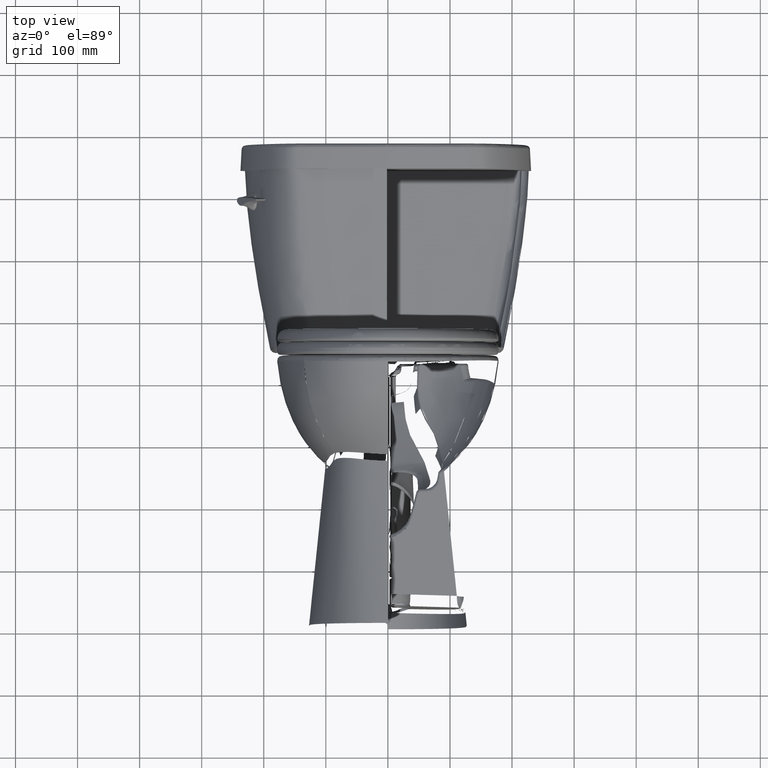
[diagram: clean part render]
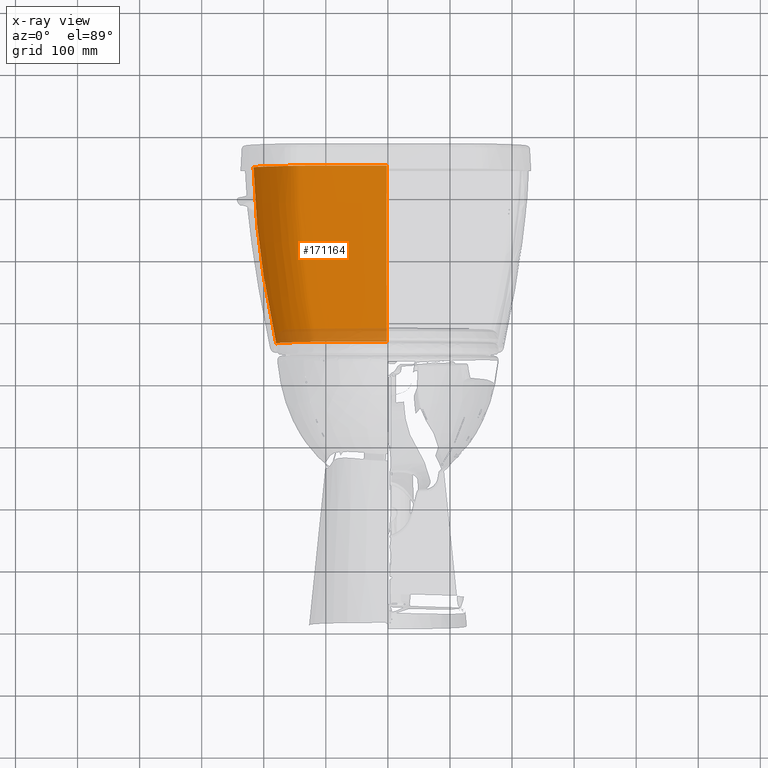
[diagram: x-ray — body ghosted, one internal face saturated and labeled with its STEP entity id]
A machine part, top view, then the same camera in x-ray: the body is ghosted and one INTERNAL B-rep face — a face not visible from any outside direction — is saturated and labeled: STEP entity #171164.
In plain terms, the highlighted face is a freeform B-spline surface patch.
Its self-contained STEP definition (entity closure, byte-faithful):
#259 = VERTEX_POINT ( 'NONE', #44811 ) ;
#425 = CARTESIAN_POINT ( 'NONE',  ( -8.419079660446380200, 14.65371468429526100, 27.30443325773526900 ) ) ;
#824 = CARTESIAN_POINT ( 'NONE',  ( -3.106235323199040700, 9.211382932808387400, 18.40540422632592800 ) ) ;
#1183 = CARTESIAN_POINT ( 'NONE',  ( -8.399860134540427100, 14.64931599205534400, 27.04958237840545000 ) ) ;
#1304 = EDGE_CURVE ( 'NONE', #114792, #196586, #52062, .T. ) ;
#1471 = CARTESIAN_POINT ( 'NONE',  ( -2.837864535323701500, 9.191541358276579000, 18.40555731201929000 ) ) ;
#2054 = CARTESIAN_POINT ( 'NONE',  ( -0.06915585233496257500, 8.753687960185088100, 27.54644208565342500 ) ) ;
#2499 = CARTESIAN_POINT ( 'NONE',  ( -0.06977486976558999700, 8.821630473137648900, 25.34970909367833900 ) ) ;
#2554 = CARTESIAN_POINT ( 'NONE',  ( -5.820563128046619500, 9.067157067053484500, 29.55404106676773100 ) ) ;
#2780 = CARTESIAN_POINT ( 'NONE',  ( -5.634218406218884000, 8.986581406398876500, 29.55532335167465200 ) ) ;
#3187 = EDGE_CURVE ( 'NONE', #102790, #125824, #28790, .T. ) ;
#3459 = CARTESIAN_POINT ( 'NONE',  ( -6.432233224795393100, 9.656388015346454500, 29.55086172115471000 ) ) ;
#3682 = ORIENTED_EDGE ( 'NONE', *, *, #148144, .T. ) ;
#4088 = VERTEX_POINT ( 'NONE', #69550 ) ;
#4457 = CARTESIAN_POINT ( 'NONE',  ( -7.998462636884526400, 12.65377571765934500, 29.55336295386297300 ) ) ;
#4483 = VERTEX_POINT ( 'NONE', #188095 ) ;
#4622 = EDGE_CURVE ( 'NONE', #90400, #87130, #191768, .T. ) ;
#4795 = CARTESIAN_POINT ( 'NONE',  ( -5.820563128046619500, 9.067157067053484500, 29.55404106676773100 ) ) ;
#5319 = CARTESIAN_POINT ( 'NONE',  ( -8.180798328318918100, 13.18988230609222800, 29.55338310121963400 ) ) ;
#5350 = CARTESIAN_POINT ( 'NONE',  ( -6.116511225121976200, 11.09519727046406100, 18.38093476572914000 ) ) ;
#5468 = ORIENTED_EDGE ( 'NONE', *, *, #6243, .T. ) ;
#6243 = EDGE_CURVE ( 'NONE', #259, #118914, #171508, .T. ) ;
#6247 = CARTESIAN_POINT ( 'NONE',  ( -1.262864671300399500, 8.709684228032118700, 29.55461837463346700 ) ) ;
#7232 = CARTESIAN_POINT ( 'NONE',  ( -6.281152038012914200, 9.472238898213625200, 29.55170385305989100 ) ) ;
#7603 = CARTESIAN_POINT ( 'NONE',  ( -4.607085457785832900, 9.401928662433551400, 18.39733695921133000 ) ) ;
#8011 = ORIENTED_EDGE ( 'NONE', *, *, #107538, .T. ) ;
#8353 = CARTESIAN_POINT ( 'NONE',  ( -8.473041967578741000, 14.40596792236968500, 28.82550555555866400 ) ) ;
#8400 = VERTEX_POINT ( 'NONE', #69933 ) ;
#8630 = ORIENTED_EDGE ( 'NONE', *, *, #16452, .T. ) ;
#8752 = CARTESIAN_POINT ( 'NONE',  ( -4.140285619023616800, 8.814950337761841200, 29.55670074416850600 ) ) ;
#8792 = B_SPLINE_CURVE_WITH_KNOTS ( 'NONE', 3,
 ( #41215, #40419, #61014, #204825 ),
 .UNSPECIFIED., .F., .F.,
 ( 4, 4 ),
 ( 0.0000000000000000000, 1.000000000000000000 ),
 .UNSPECIFIED. ) ;
#9022 = CARTESIAN_POINT ( 'NONE',  ( -7.635775005555621500, 14.58925933326115000, 21.15202729663917900 ) ) ;
#9144 = CARTESIAN_POINT ( 'NONE',  ( -5.987422853578740600, 9.192747268369686300, 28.82475790855866300 ) ) ;
#9166 = B_SPLINE_CURVE_WITH_KNOTS ( 'NONE', 3,
 ( #22821, #5350, #186383, #60866 ),
 .UNSPECIFIED., .F., .F.,
 ( 4, 4 ),
 ( 0.0000000000000000000, 1.000000000000000000 ),
 .UNSPECIFIED. ) ;
#9226 = EDGE_CURVE ( 'NONE', #4088, #193020, #67958, .T. ) ;
#9788 = CARTESIAN_POINT ( 'NONE',  ( -8.067066248318367300, 14.60411779700153400, 23.94471251384044700 ) ) ;
#9868 = CARTESIAN_POINT ( 'NONE',  ( -4.550617941806086400, 9.386305528800788200, 18.39885912971952900 ) ) ;
#9915 = CARTESIAN_POINT ( 'NONE',  ( -3.272275438581496100, 8.759730096369684900, 29.63904470355866000 ) ) ;
#10006 = CARTESIAN_POINT ( 'NONE',  ( -5.286015257712112900, 9.966031772616315000, 18.38191341893867700 ) ) ;
#10394 = CARTESIAN_POINT ( 'NONE',  ( -4.594224303578740500, 9.411123767369684100, 18.25351353655866400 ) ) ;
#10404 = CARTESIAN_POINT ( 'NONE',  ( -6.315141084413917300, 11.44530329104775600, 18.38126966788100000 ) ) ;
#10446 = VERTEX_POINT ( 'NONE', #168115 ) ;
#10600 = CARTESIAN_POINT ( 'NONE',  ( -8.211915191830531300, 14.61810084866361100, 25.11221175157728100 ) ) ;
#10710 = ORIENTED_EDGE ( 'NONE', *, *, #117412, .T. ) ;
#10733 = CARTESIAN_POINT ( 'NONE',  ( -6.214146798578740400, 9.399507022369686400, 28.82263768855866100 ) ) ;
#11184 = CARTESIAN_POINT ( 'NONE',  ( -6.277895207578740900, 11.39820839936968800, 18.29411050555866300 ) ) ;
#11352 = VERTEX_POINT ( 'NONE', #126273 ) ;
#11376 = CARTESIAN_POINT ( 'NONE',  ( -8.305978308442229600, 14.63153064617656300, 25.99431165160909200 ) ) ;
#11385 = B_SPLINE_CURVE_WITH_KNOTS ( 'NONE', 3,
 ( #2554, #110441, #182779, #165249, #75471, #147800, #166042, #57281 ),
 .UNSPECIFIED., .F., .F.,
 ( 4, 2, 2, 4 ),
 ( 0.0000000000000000000, 0.4999999999999998900, 0.7499999999999998900, 1.000000000000000000 ),
 .UNSPECIFIED. ) ;
#11500 = CARTESIAN_POINT ( 'NONE',  ( -0.5411044955814960900, 8.695272341369685500, 29.63269373055866000 ) ) ;
#11949 = CARTESIAN_POINT ( 'NONE',  ( -5.292142068578741000, 9.995518776369685600, 18.29322109455866000 ) ) ;
#11950 = ORIENTED_EDGE ( 'NONE', *, *, #31328, .T. ) ;
#11952 = B_SPLINE_CURVE_WITH_KNOTS ( 'NONE', 3,
 ( #106503, #233664, #30479, #54106, #16075, #89783 ),
 .UNSPECIFIED., .F., .F.,
 ( 4, 2, 4 ),
 ( 0.0000000000000000000, 0.5000000000000000000, 1.000000000000000000 ),
 .UNSPECIFIED. ) ;
#12148 = CARTESIAN_POINT ( 'NONE',  ( -8.120155697079482600, 14.60845819277601600, 24.35298827417355500 ) ) ;
#12284 = CARTESIAN_POINT ( 'NONE',  ( -5.086141625578740400, 9.121677021369686500, 24.38700027555865900 ) ) ;
#12728 = CARTESIAN_POINT ( 'NONE',  ( -5.127885604578740900, 9.813498909369684500, 18.29075047455866400 ) ) ;
#12771 = CARTESIAN_POINT ( 'NONE',  ( -3.353185906577966300, 9.231316932835634100, 18.40497884309920100 ) ) ;
#13049 = CARTESIAN_POINT ( 'NONE',  ( -5.416075561578741000, 9.453985696369684900, 21.41662730555865900 ) ) ;
#13053 = CARTESIAN_POINT ( 'NONE',  ( -0.3795933769099224500, 9.080660841698438900, 18.40507412228510700 ) ) ;
#13387 = CARTESIAN_POINT ( 'NONE',  ( -3.243798873011603400, 8.763799923874559600, 29.55641039710717900 ) ) ;
#13831 = CARTESIAN_POINT ( 'NONE',  ( -1.285782216581496300, 8.860388022369685100, 24.38016053555866200 ) ) ;
#14263 = CARTESIAN_POINT ( 'NONE',  ( -3.445900153492481400, 9.239076577702769900, 18.40477344907325400 ) ) ;
#14408 = CARTESIAN_POINT ( 'NONE',  ( -4.066621739641949100, 9.305921201351202000, 18.40272918239464400 ) ) ;
#14589 = CARTESIAN_POINT ( 'NONE',  ( -5.682907937578740100, 9.302785028369685300, 24.40237309755866200 ) ) ;
#14893 = VERTEX_POINT ( 'NONE', #214708 ) ;
#15366 = CARTESIAN_POINT ( 'NONE',  ( -7.765490027578740000, 12.61569406336968400, 24.40371613555866000 ) ) ;
#16075 = CARTESIAN_POINT ( 'NONE',  ( -7.278680333683935200, 10.99519423398150800, 29.55121794605412700 ) ) ;
#16148 = CARTESIAN_POINT ( 'NONE',  ( -5.127462741578739300, 9.298936486369685300, 21.39907438855866000 ) ) ;
#16248 = ORIENTED_EDGE ( 'NONE', *, *, #187950, .T. ) ;
#16348 = EDGE_CURVE ( 'NONE', #210842, #63400, #11385, .T. ) ;
#16452 = EDGE_CURVE ( 'NONE', #163771, #114867, #95707, .T. ) ;
#16930 = CARTESIAN_POINT ( 'NONE',  ( -4.907693983578740300, 9.423742340369685200, 19.26205435055866400 ) ) ;
#17692 = CARTESIAN_POINT ( 'NONE',  ( -5.331728531969000400, 8.925163980629164900, 29.55602004915839500 ) ) ;
#17705 = CARTESIAN_POINT ( 'NONE',  ( -4.781477327578740800, 9.375351516369685000, 19.24935866055866300 ) ) ;
#18398 = CARTESIAN_POINT ( 'NONE',  ( -0.06687898313162316000, 9.079168769970769000, 18.40514471876067000 ) ) ;
#18579 = B_SPLINE_CURVE_WITH_KNOTS ( 'NONE', 3,
 ( #155603, #181640, #125208, #180060 ),
 .UNSPECIFIED., .F., .F.,
 ( 4, 4 ),
 ( 0.0000000000000000000, 1.000000000000000000 ),
 .UNSPECIFIED. ) ;
#18682 = CARTESIAN_POINT ( 'NONE',  ( -8.418477241074608500, 14.65357249429260400, 27.29619333755666600 ) ) ;
#19286 = CARTESIAN_POINT ( 'NONE',  ( -4.667566845165105800, 8.855730611929926600, 29.55633320850923300 ) ) ;
#19414 = B_SPLINE_SURFACE_WITH_KNOTS ( 'NONE', 3, 3, ( 
 ( #94750, #163893, #221139, #21817, #113018, #131287, #149586, #182209, #200486, #182986, #91559, #218761, #225944, #40854, #229093, #82884, #82098, #83670, #118633, #210924, #167857, #156011, #209351, #101927, #228318, #207760, #9915, #59088, #210146, #11500, #98807 ),
 ( #47263, #8353, #191792, #117843, #174255, #45693, #136918, #65458, #138496, #135354, #189422, #192583, #10733, #101145, #9144, #26610, #226747, #28193, #171895, #119443, #136135, #117062, #153622, #44907, #120222, #172695, #63088, #190207, #80507, #81290, #137690 ),
 ( #99591, #29006, #208568, #155204, #27388, #154402, #63861, #191001, #100381, #46484, #29783, #227534, #173473, #64674, #178116, #31316, #102707, #69297, #231419, #84433, #51062, #158321, #177338, #86753, #30552, #67785, #48811, #175804, #50314, #68552, #195657 ),
 ( #49556, #142373, #123272, #193357, #15366, #122506, #176585, #194891, #232956, #213978, #32093, #141598, #212470, #105014, #14589, #156775, #85977, #213229, #139270, #124050, #12284, #32847, #196423, #87539, #211706, #48032, #229886, #214725, #13831, #175034, #105796 ),
 ( #104259, #157547, #194132, #140815, #120988, #66237, #67007, #232190, #159858, #85197, #103501, #230655, #121752, #13049, #159090, #140066, #89862, #16148, #198770, #71632, #35918, #197985, #160636, #143919, #89076, #216267, #197192, #161418, #34374, #143140, #179693 ),
 ( #162192, #52598, #217046, #70829, #234502, #108140, #162949, #88302, #51829, #235297, #126378, #53401, #107358, #215492, #125613, #16930, #233746, #17705, #35152, #70074, #106571, #124827, #144706, #180471, #33612, #178903, #209825, #83343, #139727, #194568, #68225 ),
 ( #28664, #157226, #137379, #46952, #210598, #29471, #11184, #84888, #121433, #156450, #11949, #12728, #103935, #193034, #155681, #231106, #48477, #10394, #212917, #84120, #103163, #31003, #192257, #229564, #101604, #228774, #212150, #230339, #157986, #49237, #65913 ) ),
 .UNSPECIFIED., .F., .F., .F.,
 ( 4, 1, 1, 1, 4 ),
 ( 4, 1, 1, 1, 1, 1, 1, 1, 1, 1, 1, 1, 1, 1, 1, 1, 1, 1, 1, 1, 1, 1, 1, 1, 1, 1, 1, 1, 4 ),
 ( 0.005703784276809000100, 0.2080965682239999900, 0.4161931364479999900, 0.7080965682240000200, 0.9625052689209999700 ),
 ( 0.5987822347839999400, 0.6228102780230000400, 0.6340141175110000100, 0.6452179569989999800, 0.6691447466169999600, 0.6811081414259999600, 0.6930715362339999700, 0.7050349310429999700, 0.7169983258519999600, 0.7229800232559999700, 0.7289617206609999600, 0.7349434180649999600, 0.7409251154689999700, 0.7429485084829999800, 0.7449719014960000100, 0.7490186875219999600, 0.7510420805349999900, 0.7530654735480000200, 0.7571122595749999500, 0.7611590456010000100, 0.7652058316269999500, 0.7692526176530000100, 0.7732994036800000500, 0.7813929757319999500, 0.7894865477850000500, 0.8056736918900000400, 0.8218608359950000400, 0.8380479801000000300, 0.8720784722519999700 ),
 .UNSPECIFIED. ) ;
#19459 = CARTESIAN_POINT ( 'NONE',  ( -5.767105375250555900, 10.56825423417031700, 18.38054243735387800 ) ) ;
#19580 = CARTESIAN_POINT ( 'NONE',  ( -7.864375826263556100, 12.30187437218796200, 29.55320777307820300 ) ) ;
#19826 = CARTESIAN_POINT ( 'NONE',  ( -6.736282811303054200, 12.40060890315948000, 18.38036480356576900 ) ) ;
#20617 = CARTESIAN_POINT ( 'NONE',  ( -6.818443129510067800, 12.65332892248005200, 18.37971462215191900 ) ) ;
#21056 = CARTESIAN_POINT ( 'NONE',  ( -7.780676338537959100, 12.09466231499632700, 29.55305117160013100 ) ) ;
#21542 = CARTESIAN_POINT ( 'NONE',  ( -0.06951906611264802000, 8.852213104962467900, 24.41867190946838000 ) ) ;
#21649 = CARTESIAN_POINT ( 'NONE',  ( -3.779953884164973100, 9.271666381298688400, 18.40370294031455600 ) ) ;
#21658 = EDGE_CURVE ( 'NONE', #149733, #90400, #72555, .T. ) ;
#21734 = CARTESIAN_POINT ( 'NONE',  ( -6.525335517607858000, 9.777081928629050000, 29.55051992373913100 ) ) ;
#21817 = CARTESIAN_POINT ( 'NONE',  ( -8.207498262578740300, 13.26261637436968500, 29.62869207855866400 ) ) ;
#22332 = ORIENTED_EDGE ( 'NONE', *, *, #117830, .T. ) ;
#22821 = CARTESIAN_POINT ( 'NONE',  ( -6.162551189641958700, 11.17342247855143900, 18.38101586942160300 ) ) ;
#22930 = CARTESIAN_POINT ( 'NONE',  ( -0.8792912489886327600, 8.703596083401649300, 29.55458655945786000 ) ) ;
#23167 = VERTEX_POINT ( 'NONE', #210900 ) ;
#23739 = CARTESIAN_POINT ( 'NONE',  ( -5.820563128046619500, 9.067157067053484500, 29.55404106676773100 ) ) ;
#24292 = CARTESIAN_POINT ( 'NONE',  ( -7.086305349610128700, 14.43080584027599000, 18.37551948695604400 ) ) ;
#24632 = CARTESIAN_POINT ( 'NONE',  ( -0.06687898313162316000, 9.079168769970769000, 18.40514471876067000 ) ) ;
#25068 = CARTESIAN_POINT ( 'NONE',  ( -4.661330385259646800, 9.420340280250533400, 18.39550941275556500 ) ) ;
#25119 = CARTESIAN_POINT ( 'NONE',  ( -7.380427534927727100, 11.19804300493726700, 29.55164862395460200 ) ) ;
#25234 = CARTESIAN_POINT ( 'NONE',  ( -3.654933279028351300, 9.258697916384601700, 18.40413521973621900 ) ) ;
#25276 = CARTESIAN_POINT ( 'NONE',  ( -0.6985461206657501700, 8.701673856666468900, 29.55456928334762500 ) ) ;
#25355 = CARTESIAN_POINT ( 'NONE',  ( -7.012667880179735700, 13.51943146230926200, 18.37744735951051900 ) ) ;
#25403 = CARTESIAN_POINT ( 'NONE',  ( -5.741802787177817000, 9.027475447594167000, 29.55459265388001100 ) ) ;
#25542 = VERTEX_POINT ( 'NONE', #84657 ) ;
#26183 = CARTESIAN_POINT ( 'NONE',  ( -6.020737062665270800, 9.206573364238840500, 29.55309788369235200 ) ) ;
#26211 = CARTESIAN_POINT ( 'NONE',  ( -0.06810770303828164700, 9.004060558418913700, 20.24598680381695500 ) ) ;
#26277 = VERTEX_POINT ( 'NONE', #199029 ) ;
#26610 = CARTESIAN_POINT ( 'NONE',  ( -5.912716264578740800, 9.137506011369685800, 28.82512487855866100 ) ) ;
#26823 = EDGE_CURVE ( 'NONE', #234866, #60059, #39320, .T. ) ;
#26993 = ORIENTED_EDGE ( 'NONE', *, *, #91395, .T. ) ;
#27034 = CARTESIAN_POINT ( 'NONE',  ( -4.678220259713860700, 9.426705583510161200, 18.39487241457425900 ) ) ;
#27068 = CARTESIAN_POINT ( 'NONE',  ( -3.654933279028351300, 9.258697916384601700, 18.40413521973621900 ) ) ;
#27081 = CARTESIAN_POINT ( 'NONE',  ( -2.206120058312207400, 9.150771929313382500, 18.40521981856850800 ) ) ;
#27388 = CARTESIAN_POINT ( 'NONE',  ( -7.936700316578741100, 12.61928679336968500, 27.18642852755865700 ) ) ;
#27966 = CARTESIAN_POINT ( 'NONE',  ( -4.764160523451492300, 9.468199423335720500, 18.39101387353044700 ) ) ;
#28074 = CARTESIAN_POINT ( 'NONE',  ( -7.085579152553150600, 14.59351282908907000, 18.37513363553937800 ) ) ;
#28193 = CARTESIAN_POINT ( 'NONE',  ( -5.757223539578740600, 9.053618788369686100, 28.82666079155866600 ) ) ;
#28230 = CARTESIAN_POINT ( 'NONE',  ( -7.565230813214938600, 11.59473743594560500, 29.55240527247246600 ) ) ;
#28297 = CARTESIAN_POINT ( 'NONE',  ( -5.201384969779550900, 9.871221054428202600, 18.38247048164957300 ) ) ;
#28340 = CARTESIAN_POINT ( 'NONE',  ( -5.925572568622290400, 10.79260895705007100, 18.38060767926163300 ) ) ;
#28552 = CARTESIAN_POINT ( 'NONE',  ( -3.654933279028351300, 9.258697916384601700, 18.40413521973621900 ) ) ;
#28664 = CARTESIAN_POINT ( 'NONE',  ( -7.069921895578740000, 14.66097509936968600, 18.30930926255866400 ) ) ;
#28790 = B_SPLINE_CURVE_WITH_KNOTS ( 'NONE', 3,
 ( #221263, #19580, #94872, #4457, #112343, #183103 ),
 .UNSPECIFIED., .F., .F.,
 ( 4, 2, 4 ),
 ( 0.0000000000000000000, 0.5000000000000000000, 1.000000000000000000 ),
 .UNSPECIFIED. ) ;
#28846 = CARTESIAN_POINT ( 'NONE',  ( -0.06885526009456334500, 8.928945628466754800, 22.21966332953154600 ) ) ;
#28870 = CARTESIAN_POINT ( 'NONE',  ( -8.067436993603655200, 14.60414588009607200, 23.94750578405765000 ) ) ;
#29006 = CARTESIAN_POINT ( 'NONE',  ( -8.396980598578739600, 14.38017065536968400, 27.19869176355866000 ) ) ;
#29471 = CARTESIAN_POINT ( 'NONE',  ( -6.575468650578741000, 11.99082806936968600, 18.29362959655866300 ) ) ;
#29479 = CARTESIAN_POINT ( 'NONE',  ( -6.278238150032835000, 11.37623279279863000, 18.38122546830074800 ) ) ;
#29648 = CARTESIAN_POINT ( 'NONE',  ( -1.044151900040486200, 9.098049844229134200, 18.40476465880379900 ) ) ;
#29658 = CARTESIAN_POINT ( 'NONE',  ( -8.391850291897107200, 14.64757322736378800, 26.94856130231164200 ) ) ;
#29783 = CARTESIAN_POINT ( 'NONE',  ( -6.502420761578741300, 9.805032900369685200, 27.19118125755866100 ) ) ;
#30414 = CARTESIAN_POINT ( 'NONE',  ( -7.580732472938875000, 14.58883198519878900, 20.83982022221812600 ) ) ;
#30479 = CARTESIAN_POINT ( 'NONE',  ( -7.159851321351961700, 10.77090534096959500, 29.55075816948091500 ) ) ;
#30552 = CARTESIAN_POINT ( 'NONE',  ( -4.403388852578740600, 8.932262410369686400, 27.18589942255866300 ) ) ;
#30600 = CARTESIAN_POINT ( 'NONE',  ( -4.723202989058941100, 9.446489297934100200, 18.39292338191500400 ) ) ;
#30773 = CARTESIAN_POINT ( 'NONE',  ( -6.931512929196848900, 13.08473328224330800, 18.37851037985433300 ) ) ;
#31003 = CARTESIAN_POINT ( 'NONE',  ( -4.101390493578740000, 9.319663004369685300, 18.23850942655866400 ) ) ;
#31316 = CARTESIAN_POINT ( 'NONE',  ( -5.854587765578741300, 9.177992086369686200, 27.19397888655866400 ) ) ;
#31328 = EDGE_CURVE ( 'NONE', #52359, #225612, #85743, .T. ) ;
#31935 = CARTESIAN_POINT ( 'NONE',  ( -0.06933588969177494100, 8.868155873617737900, 23.95379941567481200 ) ) ;
#32093 = CARTESIAN_POINT ( 'NONE',  ( -6.283976215578739800, 9.848948840369685000, 24.40556244755866200 ) ) ;
#32847 = CARTESIAN_POINT ( 'NONE',  ( -4.907854248578740200, 9.100292257369684300, 24.38597390755866500 ) ) ;
#33104 = ORIENTED_EDGE ( 'NONE', *, *, #65799, .T. ) ;
#33612 = CARTESIAN_POINT ( 'NONE',  ( -3.628599609581496300, 9.217553814369685100, 19.23149587755866100 ) ) ;
#33808 = CARTESIAN_POINT ( 'NONE',  ( -7.609468279842557700, 11.69327462052343100, 29.55256969455455300 ) ) ;
#34374 = CARTESIAN_POINT ( 'NONE',  ( -1.202872584581496000, 8.969847452369686300, 21.38524198555866100 ) ) ;
#34440 = CARTESIAN_POINT ( 'NONE',  ( -4.778142366243967500, 9.476695604778555500, 18.39038141588191900 ) ) ;
#35152 = CARTESIAN_POINT ( 'NONE',  ( -4.702990001578740500, 9.354359638369686500, 19.24426275855866200 ) ) ;
#35518 = VERTEX_POINT ( 'NONE', #70359 ) ;
#35918 = CARTESIAN_POINT ( 'NONE',  ( -4.750812728578740300, 9.229511072369685800, 21.39092402155866400 ) ) ;
#36126 = CARTESIAN_POINT ( 'NONE',  ( -1.879371636787400300, 9.132992777319696400, 18.40496535442047200 ) ) ;
#36307 = CARTESIAN_POINT ( 'NONE',  ( -7.098735174803112000, 10.66117686997482400, 29.55057136009369100 ) ) ;
#36877 = CARTESIAN_POINT ( 'NONE',  ( -8.420969974136651700, 14.65416209071143100, 27.33036343967840400 ) ) ;
#36896 = CARTESIAN_POINT ( 'NONE',  ( -2.097235317985116400, 9.144421930227862200, 18.40514170580333400 ) ) ;
#37693 = CARTESIAN_POINT ( 'NONE',  ( -7.738577653558038200, 11.99349718715778900, 29.55295895994248700 ) ) ;
#37823 = ORIENTED_EDGE ( 'NONE', *, *, #105929, .T. ) ;
#38082 = VERTEX_POINT ( 'NONE', #233608 ) ;
#38841 = ORIENTED_EDGE ( 'NONE', *, *, #133754, .T. ) ;
#38849 = CARTESIAN_POINT ( 'NONE',  ( -6.771260128400151700, 12.50089293024664800, 18.38012682810041200 ) ) ;
#39320 = B_SPLINE_CURVE_WITH_KNOTS ( 'NONE', 3,
 ( #63434, #81654, #227097, #28552 ),
 .UNSPECIFIED., .F., .F.,
 ( 4, 4 ),
 ( 0.0000000000000000000, 1.000000000000000000 ),
 .UNSPECIFIED. ) ;
#40078 = CARTESIAN_POINT ( 'NONE',  ( -5.261055767547192700, 8.916222075628029500, 29.55604325844962700 ) ) ;
#40296 = CARTESIAN_POINT ( 'NONE',  ( -0.6127366742417331700, 9.085824356511343700, 18.40495721024449000 ) ) ;
#40419 = CARTESIAN_POINT ( 'NONE',  ( -5.078847412255113300, 9.738946942816072600, 18.38349854790628900 ) ) ;
#40854 = CARTESIAN_POINT ( 'NONE',  ( -6.079262111578740900, 9.254690612369685700, 29.62649374055866500 ) ) ;
#41215 = CARTESIAN_POINT ( 'NONE',  ( -5.132739143622255400, 9.796869057232875400, 18.38301660442515100 ) ) ;
#41307 = CARTESIAN_POINT ( 'NONE',  ( -5.771157560500761900, 9.041311190025593800, 29.55437265157784700 ) ) ;
#41345 = CARTESIAN_POINT ( 'NONE',  ( -3.807598871502188700, 8.792979817364653200, 29.55677350589495900 ) ) ;
#41652 = EDGE_CURVE ( 'NONE', #4483, #219379, #152391, .T. ) ;
#43074 = CARTESIAN_POINT ( 'NONE',  ( -0.6985461206657501700, 8.701673856666468900, 29.55456928334762500 ) ) ;
#43409 = CARTESIAN_POINT ( 'NONE',  ( -8.336325064012518400, 13.74278973951596500, 29.55345522512912000 ) ) ;
#43801 = CARTESIAN_POINT ( 'NONE',  ( -4.900225953901012200, 9.566777977448154500, 18.38657573881765800 ) ) ;
#44353 = ORIENTED_EDGE ( 'NONE', *, *, #55420, .T. ) ;
#44483 = CARTESIAN_POINT ( 'NONE',  ( -6.146212672660646500, 9.324645746976742100, 29.55250300608899700 ) ) ;
#44710 = EDGE_CURVE ( 'NONE', #193020, #10446, #112786, .T. ) ;
#44811 = CARTESIAN_POINT ( 'NONE',  ( -4.476880313307056300, 9.370054282243456700, 18.40011350073544700 ) ) ;
#44907 = CARTESIAN_POINT ( 'NONE',  ( -4.781644792578740400, 8.893162841369685300, 28.82769854855866100 ) ) ;
#44962 = EDGE_CURVE ( 'NONE', #219379, #146733, #56304, .T. ) ;
#45202 = B_SPLINE_CURVE_WITH_KNOTS ( 'NONE', 3,
 ( #56966, #148287, #166530, #109365, #184848, #75961 ),
 .UNSPECIFIED., .F., .F.,
 ( 4, 2, 4 ),
 ( 0.0000000000000000000, 0.4999999858440346600, 0.9999999716880693100 ),
 .UNSPECIFIED. ) ;
#45289 = B_SPLINE_CURVE_WITH_KNOTS ( 'NONE', 3,
 ( #164699, #2780, #145673, #55923, #183008, #74123 ),
 .UNSPECIFIED., .F., .F.,
 ( 4, 2, 4 ),
 ( 0.0000000000000000000, 0.5000000000000000000, 1.000000000000000000 ),
 .UNSPECIFIED. ) ;
#45376 = CARTESIAN_POINT ( 'NONE',  ( -3.546487250095069500, 9.247931490812115700, 18.40449239742484600 ) ) ;
#45565 = CARTESIAN_POINT ( 'NONE',  ( -8.067225151755961200, 14.60412982991757700, 23.94590962890550800 ) ) ;
#45693 = CARTESIAN_POINT ( 'NONE',  ( -7.725164442578740200, 11.97567091736968500, 28.82113582255866300 ) ) ;
#45703 = CARTESIAN_POINT ( 'NONE',  ( -4.338622745956652900, 9.344776663881351200, 18.40153297483426800 ) ) ;
#46033 = CARTESIAN_POINT ( 'NONE',  ( -4.849631595566531700, 9.526219874325695600, 18.38789459639665200 ) ) ;
#46058 = B_SPLINE_CURVE_WITH_KNOTS ( 'NONE', 3,
 ( #63958, #46570, #82971, #10006, #99688, #28297, #191095, #153712 ),
 .UNSPECIFIED., .F., .F.,
 ( 4, 2, 2, 4 ),
 ( 0.0000000000000000000, 0.2499999999999982200, 0.4999999999999964500, 1.000000000000000000 ),
 .UNSPECIFIED. ) ;
#46109 = EDGE_CURVE ( 'NONE', #196586, #23167, #204864, .T. ) ;
#46113 = CARTESIAN_POINT ( 'NONE',  ( -4.710572141103373400, 9.440373065479823500, 18.39351158835599500 ) ) ;
#46224 = ORIENTED_EDGE ( 'NONE', *, *, #96303, .T. ) ;
#46242 = CARTESIAN_POINT ( 'NONE',  ( -4.746012602253244100, 9.458035673466531200, 18.39185922949243200 ) ) ;
#46349 = CARTESIAN_POINT ( 'NONE',  ( -8.057588876724032900, 14.60339590343676800, 23.87276323644907100 ) ) ;
#46484 = CARTESIAN_POINT ( 'NONE',  ( -6.705542133578740400, 10.06985011236968600, 27.18952306055866300 ) ) ;
#46550 = B_SPLINE_CURVE_WITH_KNOTS ( 'NONE', 3,
 ( #161945, #91923, #163478, #126911 ),
 .UNSPECIFIED., .F., .F.,
 ( 4, 4 ),
 ( 0.0000000000000000000, 1.000000000000000000 ),
 .UNSPECIFIED. ) ;
#46570 = CARTESIAN_POINT ( 'NONE',  ( -5.356144996227538300, 10.04659234627178000, 18.38153674869650800 ) ) ;
#46952 = CARTESIAN_POINT ( 'NONE',  ( -6.948046812578740000, 13.20938573836968600, 18.30181147155866100 ) ) ;
#47147 = CARTESIAN_POINT ( 'NONE',  ( -7.778846330663365700, 14.59127436516200900, 21.99349723091641500 ) ) ;
#47263 = CARTESIAN_POINT ( 'NONE',  ( -8.522807747578740500, 14.74923139036968500, 28.82592269255866300 ) ) ;
#47643 = CARTESIAN_POINT ( 'NONE',  ( -4.026841708629953900, 9.300854802114319100, 18.40285952947754900 ) ) ;
#47904 = CARTESIAN_POINT ( 'NONE',  ( -7.639617659106130000, 14.58928984709160500, 21.17384661335929500 ) ) ;
#48032 = CARTESIAN_POINT ( 'NONE',  ( -3.682158283581496300, 9.009312819369686300, 24.38382876755866100 ) ) ;
#48274 = CARTESIAN_POINT ( 'NONE',  ( -5.502775583472066000, 8.953070354329327100, 29.55583948442852500 ) ) ;
#48477 = CARTESIAN_POINT ( 'NONE',  ( -4.663501792578740500, 9.434528590369685800, 18.25969636755866400 ) ) ;
#48674 = CARTESIAN_POINT ( 'NONE',  ( -8.263531336673892700, 14.62508238934188200, 25.58317601721026300 ) ) ;
#48811 = CARTESIAN_POINT ( 'NONE',  ( -3.225616492581496100, 8.857666271369685900, 27.18490226455866200 ) ) ;
#49146 = CARTESIAN_POINT ( 'NONE',  ( -6.315141084413917300, 11.44530329104775600, 18.38126966788100000 ) ) ;
#49237 = CARTESIAN_POINT ( 'NONE',  ( -0.4392984385814960900, 9.085627003369685500, 18.23170494155866100 ) ) ;
#49319 = CARTESIAN_POINT ( 'NONE',  ( -4.778142366243967500, 9.476695604778555500, 18.39038141588191900 ) ) ;
#49466 = CARTESIAN_POINT ( 'NONE',  ( -2.227064563611026700, 8.730234553777833600, 29.55521162041652500 ) ) ;
#49556 = CARTESIAN_POINT ( 'NONE',  ( -8.156339493578739700, 14.67156915136968800, 24.42232904255866200 ) ) ;
#50314 = CARTESIAN_POINT ( 'NONE',  ( -1.357298144581496000, 8.772486407369687100, 27.17881838155866000 ) ) ;
#50883 = CARTESIAN_POINT ( 'NONE',  ( -4.026841708629953900, 9.300854802114319100, 18.40285952947754900 ) ) ;
#51062 = CARTESIAN_POINT ( 'NONE',  ( -5.339171690578740300, 9.020318587369684900, 27.18776611455866600 ) ) ;
#51829 = CARTESIAN_POINT ( 'NONE',  ( -5.959739822578740100, 10.53273118836968600, 19.28956573155866000 ) ) ;
#51894 = CARTESIAN_POINT ( 'NONE',  ( -4.832911753693614400, 9.513708966245419100, 18.38839668614423700 ) ) ;
#52062 = B_SPLINE_CURVE_WITH_KNOTS ( 'NONE', 3,
 ( #113861, #93978, #168684, #78065 ),
 .UNSPECIFIED., .F., .F.,
 ( 4, 4 ),
 ( 0.0000000000000000000, 1.000000000000000000 ),
 .UNSPECIFIED. ) ;
#52250 = CARTESIAN_POINT ( 'NONE',  ( -2.499724247235981500, 8.737575357924486100, 29.55547497442376700 ) ) ;
#52359 = VERTEX_POINT ( 'NONE', #115599 ) ;
#52598 = CARTESIAN_POINT ( 'NONE',  ( -7.291093440578739800, 14.32432785336968600, 19.29775930855866400 ) ) ;
#53401 = CARTESIAN_POINT ( 'NONE',  ( -5.339595521578739400, 9.787340198369685500, 19.28249868555866400 ) ) ;
#54106 = CARTESIAN_POINT ( 'NONE',  ( -7.235901159926535300, 10.91314379665205300, 29.55103866394437900 ) ) ;
#54375 = CARTESIAN_POINT ( 'NONE',  ( -7.652952277671843700, 11.79282192686991900, 29.55272067163906200 ) ) ;
#54593 = EDGE_CURVE ( 'NONE', #174064, #86548, #55757, .T. ) ;
#54791 = CARTESIAN_POINT ( 'NONE',  ( -0.06687895587046366300, 8.698123291018443800, 29.55459355778116400 ) ) ;
#54926 = CARTESIAN_POINT ( 'NONE',  ( -5.411747604266300200, 8.936885549641855800, 29.55595998690782300 ) ) ;
#54951 = CARTESIAN_POINT ( 'NONE',  ( -2.494513490798832200, 9.168490493281284500, 18.40543499454094000 ) ) ;
#55130 = CARTESIAN_POINT ( 'NONE',  ( -8.410750351932899000, 14.65177366261619900, 27.19198114315841200 ) ) ;
#55420 = EDGE_CURVE ( 'NONE', #60059, #163386, #144505, .T. ) ;
#55757 = B_SPLINE_CURVE_WITH_KNOTS ( 'NONE', 3,
 ( #218068, #110717, #2054, #165540 ),
 .UNSPECIFIED., .F., .F.,
 ( 4, 4 ),
 ( 0.0000000000000000000, 1.000000000000000000 ),
 .UNSPECIFIED. ) ;
#55923 = CARTESIAN_POINT ( 'NONE',  ( -5.683867890731239200, 9.003521196084165000, 29.55501890891819600 ) ) ;
#56195 = CARTESIAN_POINT ( 'NONE',  ( -2.494513490798832200, 9.168490493281284500, 18.40543499454094000 ) ) ;
#56212 = ORIENTED_EDGE ( 'NONE', *, *, #176273, .T. ) ;
#56304 = B_SPLINE_CURVE_WITH_KNOTS ( 'NONE', 3,
 ( #82571, #121446, #193821, #27081 ),
 .UNSPECIFIED., .F., .F.,
 ( 4, 4 ),
 ( 0.0000000000000000000, 1.000000000000000000 ),
 .UNSPECIFIED. ) ;
#56542 = CARTESIAN_POINT ( 'NONE',  ( -6.574228197554781200, 11.98044060667327500, 18.38116649744790400 ) ) ;
#56627 = B_SPLINE_CURVE_WITH_KNOTS ( 'NONE', 3,
 ( #49319, #192347, #27966, #46242, #173236, #228854 ),
 .UNSPECIFIED., .F., .F.,
 ( 4, 2, 4 ),
 ( 0.0000000000000000000, 0.5000000000000000000, 1.000000000000000000 ),
 .UNSPECIFIED. ) ;
#56657 = VERTEX_POINT ( 'NONE', #143819 ) ;
#56966 = CARTESIAN_POINT ( 'NONE',  ( -8.336325064012518400, 13.74278973951596500, 29.55345522512912000 ) ) ;
#57281 = CARTESIAN_POINT ( 'NONE',  ( -5.993922006456692500, 9.184879992817322100, 29.55320490457125600 ) ) ;
#57348 = CARTESIAN_POINT ( 'NONE',  ( -6.525453337925640100, 11.87005159025678900, 18.38128014973008500 ) ) ;
#59088 = CARTESIAN_POINT ( 'NONE',  ( -2.472240371581496000, 8.732836288369686200, 29.63535949755866400 ) ) ;
#59549 = CARTESIAN_POINT ( 'NONE',  ( -5.761877039338063600, 9.036801031384193500, 29.55444096715427100 ) ) ;
#59825 = EDGE_CURVE ( 'NONE', #118399, #130594, #171991, .T. ) ;
#60059 = VERTEX_POINT ( 'NONE', #25234 ) ;
#60866 = CARTESIAN_POINT ( 'NONE',  ( -6.020542710453115700, 10.94164059699780400, 18.38076017090346100 ) ) ;
#61014 = CARTESIAN_POINT ( 'NONE',  ( -5.026106904018739400, 9.684148022427484300, 18.38421122590527500 ) ) ;
#61134 = CARTESIAN_POINT ( 'NONE',  ( -0.06846823717543432100, 8.968853144829148900, 21.17107659340039300 ) ) ;
#61275 = CARTESIAN_POINT ( 'NONE',  ( -4.778142366243967500, 9.476695604778555500, 18.39038141588191900 ) ) ;
#61638 = CARTESIAN_POINT ( 'NONE',  ( -8.301275010762681800, 13.60385250022317300, 29.55344698607701700 ) ) ;
#62239 = CARTESIAN_POINT ( 'NONE',  ( -1.584687042842096500, 8.715629582468603000, 29.55470509219449600 ) ) ;
#63024 = EDGE_CURVE ( 'NONE', #155221, #152837, #151520, .T. ) ;
#63088 = CARTESIAN_POINT ( 'NONE',  ( -3.273298411581496000, 8.792520270369685400, 28.82742994855866300 ) ) ;
#63098 = CARTESIAN_POINT ( 'NONE',  ( -4.476880313307056300, 9.370054282243456700, 18.40011350073544700 ) ) ;
#63400 = VERTEX_POINT ( 'NONE', #104392 ) ;
#63434 = CARTESIAN_POINT ( 'NONE',  ( -3.779953884164973100, 9.271666381298688400, 18.40370294031455600 ) ) ;
#63733 = CARTESIAN_POINT ( 'NONE',  ( -8.268173154851654200, 14.62575394245028300, 25.62698901064866100 ) ) ;
#63773 = CARTESIAN_POINT ( 'NONE',  ( -1.423762289066568000, 8.712472741783328100, 29.55465539820324500 ) ) ;
#63808 = CARTESIAN_POINT ( 'NONE',  ( -4.582398009279478000, 9.395098269976554000, 18.39800244569450500 ) ) ;
#63861 = CARTESIAN_POINT ( 'NONE',  ( -7.405109298578739900, 11.33226570936968600, 27.18667778255866500 ) ) ;
#63958 = CARTESIAN_POINT ( 'NONE',  ( -5.381146446346147800, 10.07598887249986700, 18.38142111032881200 ) ) ;
#64030 = B_SPLINE_CURVE_WITH_KNOTS ( 'NONE', 3,
 ( #222211, #204764, #97423, #167365 ),
 .UNSPECIFIED., .F., .F.,
 ( 4, 4 ),
 ( 0.0000000000000000000, 1.000000000000000000 ),
 .UNSPECIFIED. ) ;
#64307 = CARTESIAN_POINT ( 'NONE',  ( -6.200188559070313400, 9.381056068082784800, 29.55222877300967000 ) ) ;
#64544 = CARTESIAN_POINT ( 'NONE',  ( -8.344121309350237300, 14.63798979774686300, 26.38866770215040000 ) ) ;
#64674 = CARTESIAN_POINT ( 'NONE',  ( -6.026682645578740800, 9.306603062369685400, 27.19533819855866200 ) ) ;
#64745 = CARTESIAN_POINT ( 'NONE',  ( -7.427079893416992800, 11.29536015597559900, 29.55186505736178800 ) ) ;
#64802 = CARTESIAN_POINT ( 'NONE',  ( -5.839857267961879600, 10.66907318027315600, 18.38053349096087900 ) ) ;
#64828 = B_SPLINE_CURVE_WITH_KNOTS ( 'NONE', 3,
 ( #111842, #148453, #824, #220777 ),
 .UNSPECIFIED., .F., .F.,
 ( 4, 4 ),
 ( 0.0000000000000000000, 1.000000000000000000 ),
 .UNSPECIFIED. ) ;
#65329 = CARTESIAN_POINT ( 'NONE',  ( -8.067860576489462000, 14.60417800202395500, 23.95069810029355000 ) ) ;
#65458 = CARTESIAN_POINT ( 'NONE',  ( -7.218847740578740800, 10.87029690436968600, 28.81698827955866400 ) ) ;
#65540 = ORIENTED_EDGE ( 'NONE', *, *, #230067, .T. ) ;
#65799 = EDGE_CURVE ( 'NONE', #87130, #140565, #98794, .T. ) ;
#65913 = CARTESIAN_POINT ( 'NONE',  ( -0.002487182581827559300, 9.086439791369684800, 18.23175263255866000 ) ) ;
#66100 = CARTESIAN_POINT ( 'NONE',  ( -8.267786913328421900, 14.62569790784805500, 25.62333791988647400 ) ) ;
#66237 = CARTESIAN_POINT ( 'NONE',  ( -7.152664261578740600, 11.98558548536968600, 21.42919151555866400 ) ) ;
#66377 = ORIENTED_EDGE ( 'NONE', *, *, #235302, .T. ) ;
#66876 = CARTESIAN_POINT ( 'NONE',  ( -7.330453361154232200, 14.58977820989701800, 19.52789634900191700 ) ) ;
#67007 = CARTESIAN_POINT ( 'NONE',  ( -6.862803941578739900, 11.36137934936968500, 21.42961622055866400 ) ) ;
#67076 = CARTESIAN_POINT ( 'NONE',  ( -7.538999805282359500, 11.53630891673295600, 29.55230777554859900 ) ) ;
#67775 = B_SPLINE_CURVE_WITH_KNOTS ( 'NONE', 3,
 ( #234049, #13387, #160172, #123603 ),
 .UNSPECIFIED., .F., .F.,
 ( 4, 4 ),
 ( 0.0000000000000000000, 1.000000000000000000 ),
 .UNSPECIFIED. ) ;
#67785 = CARTESIAN_POINT ( 'NONE',  ( -3.883653685581495800, 8.899397437369685800, 27.18617648155866500 ) ) ;
#67790 = CARTESIAN_POINT ( 'NONE',  ( -0.6127366742417331700, 9.085824356511343700, 18.40495721024449000 ) ) ;
#67958 = B_SPLINE_CURVE_WITH_KNOTS ( 'NONE', 3,
 ( #233387, #180107, #52250, #69718 ),
 .UNSPECIFIED., .F., .F.,
 ( 4, 4 ),
 ( 0.0000000000000000000, 1.000000000000000000 ),
 .UNSPECIFIED. ) ;
#68225 = CARTESIAN_POINT ( 'NONE',  ( -0.0006977535818275590700, 9.044585767369685700, 19.23033804055866400 ) ) ;
#68552 = CARTESIAN_POINT ( 'NONE',  ( -0.5391751535814961500, 8.762670432369684900, 27.17885797055866300 ) ) ;
#68684 = B_SPLINE_CURVE_WITH_KNOTS ( 'NONE', 3,
 ( #63808, #9868, #176538, #85925 ),
 .UNSPECIFIED., .F., .F.,
 ( 4, 4 ),
 ( 0.0000000000000000000, 1.000000000000000000 ),
 .UNSPECIFIED. ) ;
#69128 = CARTESIAN_POINT ( 'NONE',  ( -3.629239517476766900, 8.783314053335498500, 29.55668547703504200 ) ) ;
#69297 = CARTESIAN_POINT ( 'NONE',  ( -5.707291184578740400, 9.105920968369686000, 27.19159480155866500 ) ) ;
#69491 = VERTEX_POINT ( 'NONE', #76280 ) ;
#69550 = CARTESIAN_POINT ( 'NONE',  ( -2.227064563611026700, 8.730234553777833600, 29.55521162041652500 ) ) ;
#69718 = CARTESIAN_POINT ( 'NONE',  ( -2.635696419531892600, 8.741841311468068200, 29.55567267593109900 ) ) ;
#69933 = CARTESIAN_POINT ( 'NONE',  ( -5.381146446346147800, 10.07598887249986700, 18.38142111032881200 ) ) ;
#70074 = CARTESIAN_POINT ( 'NONE',  ( -4.585509711578740900, 9.330893965369686100, 19.24029576855866000 ) ) ;
#70249 = ORIENTED_EDGE ( 'NONE', *, *, #203768, .T. ) ;
#70359 = CARTESIAN_POINT ( 'NONE',  ( -4.140285619023616800, 8.814950337761841200, 29.55670074416850600 ) ) ;
#70829 = CARTESIAN_POINT ( 'NONE',  ( -7.153451431578740300, 13.21217567136968500, 19.29401577755866300 ) ) ;
#71632 = CARTESIAN_POINT ( 'NONE',  ( -4.918687710578740100, 9.254432474369686200, 21.39235280555866200 ) ) ;
#72555 = B_SPLINE_CURVE_WITH_KNOTS ( 'NONE', 3,
 ( #151596, #227865, #195203, #138817, #156326, #212014 ),
 .UNSPECIFIED., .F., .F.,
 ( 4, 2, 4 ),
 ( 0.0000000000000000000, 0.5000000000000000000, 1.000000000000000000 ),
 .UNSPECIFIED. ) ;
#72571 = CARTESIAN_POINT ( 'NONE',  ( -8.419706176992690400, 14.65386280474982800, 27.31301725530918400 ) ) ;
#72582 = CARTESIAN_POINT ( 'NONE',  ( -7.821876775336567000, 12.19666087550830200, 29.55312825823506600 ) ) ;
#72672 = VERTEX_POINT ( 'NONE', #183705 ) ;
#73171 = VERTEX_POINT ( 'NONE', #154503 ) ;
#73360 = CARTESIAN_POINT ( 'NONE',  ( -8.524621089649386400, 14.68906664165395200, 29.55325609488934500 ) ) ;
#73766 = CARTESIAN_POINT ( 'NONE',  ( -0.06751971765695685700, 8.719245254933287700, 28.76002742774267800 ) ) ;
#74123 = CARTESIAN_POINT ( 'NONE',  ( -5.719400801736013000, 9.017779194289863300, 29.55476069995829000 ) ) ;
#75471 = CARTESIAN_POINT ( 'NONE',  ( -5.927944756330495200, 9.134615975996890600, 29.55345684331037100 ) ) ;
#75961 = CARTESIAN_POINT ( 'NONE',  ( -8.524621089649386400, 14.68906664165395200, 29.55325609488934500 ) ) ;
#76199 = CARTESIAN_POINT ( 'NONE',  ( -0.06933588969177494100, 8.868155873617737900, 23.95379941567481200 ) ) ;
#76280 = CARTESIAN_POINT ( 'NONE',  ( -4.554802160429108700, 8.846481387342471700, 29.55641770552757600 ) ) ;
#76318 = CARTESIAN_POINT ( 'NONE',  ( -6.621296558004071500, 12.09614952533262400, 18.38097898099840000 ) ) ;
#77169 = CARTESIAN_POINT ( 'NONE',  ( -6.338909941460377300, 9.540727980331952900, 29.55136265229586800 ) ) ;
#77875 = CARTESIAN_POINT ( 'NONE',  ( -0.4870684748382069200, 8.699424463805691200, 29.55456150517022000 ) ) ;
#78065 = CARTESIAN_POINT ( 'NONE',  ( -7.012667880179735700, 13.51943146230926200, 18.37744735951051900 ) ) ;
#79803 = CARTESIAN_POINT ( 'NONE',  ( -8.136740385863793900, 13.05240417264072600, 29.55340825111666100 ) ) ;
#80068 = CARTESIAN_POINT ( 'NONE',  ( -7.025376035001601200, 10.53069914826041400, 29.55035194947562600 ) ) ;
#80507 = CARTESIAN_POINT ( 'NONE',  ( -1.373772535581496300, 8.728039689369685700, 28.82066363955866400 ) ) ;
#81290 = CARTESIAN_POINT ( 'NONE',  ( -0.5433769105814960600, 8.716602279369686500, 28.82108788555866500 ) ) ;
#81365 = CARTESIAN_POINT ( 'NONE',  ( -7.506381302673021100, 11.46451699910739400, 29.55219026098117000 ) ) ;
#81654 = CARTESIAN_POINT ( 'NONE',  ( -3.738281060951545800, 9.267148025226083200, 18.40383530605228700 ) ) ;
#81733 = CARTESIAN_POINT ( 'NONE',  ( -4.669034388661643200, 9.423187691083811000, 18.39523146488292200 ) ) ;
#81976 = CARTESIAN_POINT ( 'NONE',  ( -8.269638196809486500, 14.62596688857144000, 25.64085137190551900 ) ) ;
#82098 = CARTESIAN_POINT ( 'NONE',  ( -5.831453189578740000, 9.069510887369684600, 29.63010582855866600 ) ) ;
#82112 = CARTESIAN_POINT ( 'NONE',  ( -4.633912916637174600, 9.410206743624556200, 18.39649859460823600 ) ) ;
#82113 = EDGE_CURVE ( 'NONE', #218630, #52359, #121048, .T. ) ;
#82453 = CARTESIAN_POINT ( 'NONE',  ( -6.812168840505874500, 10.18500917430518300, 29.55006898494822200 ) ) ;
#82571 = CARTESIAN_POINT ( 'NONE',  ( -2.494513490798832200, 9.168490493281284500, 18.40543499454094000 ) ) ;
#82608 = ORIENTED_EDGE ( 'NONE', *, *, #213318, .T. ) ;
#82751 = CARTESIAN_POINT ( 'NONE',  ( -7.635231142129528700, 14.58925510001197300, 21.14894207678730000 ) ) ;
#82884 = CARTESIAN_POINT ( 'NONE',  ( -5.910525803578740200, 9.119117109369684100, 29.62875175655866000 ) ) ;
#82971 = CARTESIAN_POINT ( 'NONE',  ( -5.332104981234194500, 10.01875782867712900, 18.38165397847801000 ) ) ;
#83004 = CARTESIAN_POINT ( 'NONE',  ( -6.818443129510067800, 12.65332892248005200, 18.37971462215191900 ) ) ;
#83139 = EDGE_CURVE ( 'NONE', #181504, #121420, #224368, .T. ) ;
#83343 = CARTESIAN_POINT ( 'NONE',  ( -2.007047297581496400, 9.102288237369686300, 19.23119527455866200 ) ) ;
#83530 = CARTESIAN_POINT ( 'NONE',  ( -7.711307860892371300, 14.59008571430844200, 21.58855436528530400 ) ) ;
#83670 = CARTESIAN_POINT ( 'NONE',  ( -5.749519672578740500, 9.028090404369685000, 29.63207211155866400 ) ) ;
#84120 = CARTESIAN_POINT ( 'NONE',  ( -4.405966024578741100, 9.366015904369685800, 18.24315959755865900 ) ) ;
#84298 = CARTESIAN_POINT ( 'NONE',  ( -7.635362155809605900, 14.58925611784779400, 21.14968522266265400 ) ) ;
#84433 = CARTESIAN_POINT ( 'NONE',  ( -5.505630489578740200, 9.048170848369684500, 27.18911846755866400 ) ) ;
#84457 = CARTESIAN_POINT ( 'NONE',  ( -6.429271350201678300, 11.66607663615151200, 18.38136106361052300 ) ) ;
#84657 = CARTESIAN_POINT ( 'NONE',  ( -8.524621089649386400, 14.68906664165395200, 29.55325609488934500 ) ) ;
#84888 = CARTESIAN_POINT ( 'NONE',  ( -6.025311496578740200, 10.96877665236968500, 18.29563265855866300 ) ) ;
#85068 = CARTESIAN_POINT ( 'NONE',  ( -7.220646385448342000, 14.59110111695102100, 18.98877860936010400 ) ) ;
#85197 = CARTESIAN_POINT ( 'NONE',  ( -6.115240656578740700, 10.15510727036968700, 21.42788619755866700 ) ) ;
#85265 = VERTEX_POINT ( 'NONE', #107482 ) ;
#85718 = ORIENTED_EDGE ( 'NONE', *, *, #132028, .T. ) ;
#85743 = B_SPLINE_CURVE_WITH_KNOTS ( 'NONE', 3,
 ( #25068, #82112, #7603, #189445 ),
 .UNSPECIFIED., .F., .F.,
 ( 4, 4 ),
 ( 0.0000000000000000000, 1.000000000000000000 ),
 .UNSPECIFIED. ) ;
#85925 = CARTESIAN_POINT ( 'NONE',  ( -4.476880313307056300, 9.370054282243456700, 18.40011350073544700 ) ) ;
#85977 = CARTESIAN_POINT ( 'NONE',  ( -5.543969360578739900, 9.223317647369686500, 24.39660341055866500 ) ) ;
#85998 = CARTESIAN_POINT ( 'NONE',  ( -6.475850406085276000, 11.76485771921991800, 18.38132187536365300 ) ) ;
#86548 = VERTEX_POINT ( 'NONE', #97018 ) ;
#86753 = CARTESIAN_POINT ( 'NONE',  ( -4.721003309578740900, 8.955546741369685600, 27.18603700355866300 ) ) ;
#87130 = VERTEX_POINT ( 'NONE', #40296 ) ;
#87539 = CARTESIAN_POINT ( 'NONE',  ( -4.486018385578740100, 9.059537342369685200, 24.38440994255865800 ) ) ;
#88302 = CARTESIAN_POINT ( 'NONE',  ( -6.231112410578740300, 10.94713011336968700, 19.28923010755866600 ) ) ;
#89076 = CARTESIAN_POINT ( 'NONE',  ( -3.899865053581496300, 9.145952084369685800, 21.38592719755866200 ) ) ;
#89163 = CARTESIAN_POINT ( 'NONE',  ( -5.767105375250555900, 10.56825423417031700, 18.38054243735387800 ) ) ;
#89319 = EDGE_CURVE ( 'NONE', #152837, #97160, #177761, .T. ) ;
#89369 = ORIENTED_EDGE ( 'NONE', *, *, #143668, .T. ) ;
#89783 = CARTESIAN_POINT ( 'NONE',  ( -7.325578228831249200, 11.08869243613752300, 29.55141645699173100 ) ) ;
#89862 = CARTESIAN_POINT ( 'NONE',  ( -5.196579555578740200, 9.321402780369686200, 21.40424846055866200 ) ) ;
#90142 = ORIENTED_EDGE ( 'NONE', *, *, #183994, .T. ) ;
#90400 = VERTEX_POINT ( 'NONE', #137304 ) ;
#90822 = CARTESIAN_POINT ( 'NONE',  ( -8.489464580515949900, 14.67216298116941300, 28.38396637420905200 ) ) ;
#91395 = EDGE_CURVE ( 'NONE', #203780, #99458, #45289, .T. ) ;
#91559 = CARTESIAN_POINT ( 'NONE',  ( -6.534268815578739600, 9.787057247369684600, 29.61871674255866400 ) ) ;
#91582 = CARTESIAN_POINT ( 'NONE',  ( -8.515840962717151200, 14.68299359192766900, 29.08540297841443900 ) ) ;
#91923 = CARTESIAN_POINT ( 'NONE',  ( -3.984733519391161500, 9.295490410012577700, 18.40302419179131400 ) ) ;
#92543 = CARTESIAN_POINT ( 'NONE',  ( -0.6127366742417331700, 9.085824356511343700, 18.40495721024449000 ) ) ;
#92752 = ORIENTED_EDGE ( 'NONE', *, *, #1304, .T. ) ;
#92882 = EDGE_CURVE ( 'NONE', #35518, #69491, #142522, .T. ) ;
#93059 = ORIENTED_EDGE ( 'NONE', *, *, #177808, .T. ) ;
#93444 = CARTESIAN_POINT ( 'NONE',  ( -2.677998697771793800, 9.180308466169957900, 18.40554638755096300 ) ) ;
#93978 = CARTESIAN_POINT ( 'NONE',  ( -7.053300128319036400, 13.82676302678347600, 18.37682048038392700 ) ) ;
#94318 = CARTESIAN_POINT ( 'NONE',  ( -0.06991049552360138800, 8.788565248459034900, 26.39234704205280100 ) ) ;
#94621 = B_SPLINE_CURVE_WITH_KNOTS ( 'NONE', 3,
 ( #205705, #96784, #25403, #59549, #41307, #97582, #223925, #4795 ),
 .UNSPECIFIED., .F., .F.,
 ( 4, 2, 2, 4 ),
 ( 0.0000000000000000000, 0.2499999999999967800, 0.4999999999999935600, 1.000000000000000000 ),
 .UNSPECIFIED. ) ;
#94690 = ORIENTED_EDGE ( 'NONE', *, *, #26823, .T. ) ;
#94750 = CARTESIAN_POINT ( 'NONE',  ( -8.535846049578740500, 14.75964662836968700, 29.62739054655866500 ) ) ;
#94872 = CARTESIAN_POINT ( 'NONE',  ( -7.908475028704362600, 12.41425869005276200, 29.55327369013054600 ) ) ;
#95200 = CARTESIAN_POINT ( 'NONE',  ( -5.618813502637526500, 8.982003469607594300, 29.55540214974885400 ) ) ;
#95354 = CARTESIAN_POINT ( 'NONE',  ( -4.959680411745575100, 8.882902861378701300, 29.55613744018662100 ) ) ;
#95707 = B_SPLINE_CURVE_WITH_KNOTS ( 'NONE', 3,
 ( #150159, #224826, #43801, #115171 ),
 .UNSPECIFIED., .F., .F.,
 ( 4, 4 ),
 ( 0.0000000000000000000, 1.000000000000000000 ),
 .UNSPECIFIED. ) ;
#95932 = CARTESIAN_POINT ( 'NONE',  ( -6.797943141471546500, 12.58532459310635500, 18.37993331031249200 ) ) ;
#96303 = EDGE_CURVE ( 'NONE', #121420, #8400, #169967, .T. ) ;
#96501 = VERTEX_POINT ( 'NONE', #40078 ) ;
#96534 = ORIENTED_EDGE ( 'NONE', *, *, #201921, .T. ) ;
#96784 = CARTESIAN_POINT ( 'NONE',  ( -5.731028776668953400, 9.022668250244132400, 29.55467634288843100 ) ) ;
#96935 = CARTESIAN_POINT ( 'NONE',  ( -4.783179061513070700, 8.865811822438969300, 29.55622982239293300 ) ) ;
#97018 = CARTESIAN_POINT ( 'NONE',  ( -0.06834251567244099800, 8.736566218193919700, 28.14972498575156800 ) ) ;
#97160 = VERTEX_POINT ( 'NONE', #36307 ) ;
#97347 = CARTESIAN_POINT ( 'NONE',  ( -6.899049307367363300, 12.93945565046422400, 18.37893285104695500 ) ) ;
#97423 = CARTESIAN_POINT ( 'NONE',  ( -4.219996014131796300, 9.326483354714245200, 18.40229025226406600 ) ) ;
#97582 = CARTESIAN_POINT ( 'NONE',  ( -5.796558118314061800, 9.054034693846048800, 29.55419312070915800 ) ) ;
#98428 = CARTESIAN_POINT ( 'NONE',  ( -4.698992734464916900, 9.435299855010150300, 18.39401181276608800 ) ) ;
#98439 = CARTESIAN_POINT ( 'NONE',  ( -6.173214869102259300, 9.352186803466402400, 29.55238183469565200 ) ) ;
#98746 = VERTEX_POINT ( 'NONE', #197018 ) ;
#98794 = B_SPLINE_CURVE_WITH_KNOTS ( 'NONE', 3,
 ( #67790, #13053, #229097, #120992 ),
 .UNSPECIFIED., .F., .F.,
 ( 4, 4 ),
 ( 0.0000000000000000000, 0.9999999505521016700 ),
 .UNSPECIFIED. ) ;
#98807 = CARTESIAN_POINT ( 'NONE',  ( 0.01225333741818897600, 8.696130404369684500, 29.63266932455866300 ) ) ;
#99458 = VERTEX_POINT ( 'NONE', #213383 ) ;
#99591 = CARTESIAN_POINT ( 'NONE',  ( -8.441713182578741500, 14.72099654436968700, 27.20174837555866200 ) ) ;
#99688 = CARTESIAN_POINT ( 'NONE',  ( -5.263975933255476700, 9.941152390405799000, 18.38205389211476900 ) ) ;
#100022 = B_SPLINE_CURVE_WITH_KNOTS ( 'NONE', 3,
 ( #73360, #91582, #90822, #109109, #200508, #36877, #72571, #163916, #109894, #127346, #425, #18682, #145671, #55130, #1183, #29658, #190875, #64544, #11376, #210793, #154273, #174125, #81976, #172572, #63733, #66100, #209226, #48674, #212334, #100248, #10600, #230530, #103362, #12148, #139138, #227417, #155882, #101806, #118507, #65329, #28870, #45565, #157419, #9788, #193995, #211570, #138364, #137565, #46349, #193228, #173348, #229764, #228963, #192456, #47147, #228189, #83530, #175679, #120087, #155080, #156642, #47904, #136790, #119310, #9022, #174903, #84298, #102570, #120866, #82751, #30414, #136017, #66876, #85068, #28074 ),
 .UNSPECIFIED., .F., .F.,
 ( 4, 1, 1, 1, 1, 1, 2, 2, 1, 1, 2, 2, 2, 2, 1, 2, 2, 1, 1, 1, 2, 2, 1, 1, 1, 1, 1, 1, 1, 1, 1, 1, 1, 2, 2, 2, 2, 2, 2, 2, 1, 1, 1, 1, 1, 1, 1, 1, 1, 2, 2, 2, 4 ),
 ( 2.882369222413287700E-011, 0.1250000001374641200, 0.1875000001917843400, 0.1953125001985743800, 0.1992187502019693600, 0.1997070314523934600, 0.1999511720776055200, 0.2001953127028175400, 0.2011718752036672800, 0.2031250002053667000, 0.2187500002189543500, 0.2500000002461296700, 0.3125000003004790300, 0.3437500003276542400, 0.3476562503310508000, 0.3496093753327495500, 0.3500976565831748800, 0.3505859378336002600, 0.3515625003344510800, 0.3593750003412650200, 0.3750000003548930600, 0.4375000004094074500, 0.4687500004366646500, 0.4843750004502926900, 0.4921875004571066300, 0.4960937504605142400, 0.4980468754622179900, 0.4990234379630699200, 0.4995117192134951900, 0.4997558598387078500, 0.4998779301513141500, 0.4999389653076172800, 0.4999694828857683100, 0.4999847416748432500, 0.5000000004639182400, 0.5625000004043120300, 0.6250000003447058200, 0.6875000002850996100, 0.7187500002552964500, 0.7343750002403949300, 0.7421875002329441100, 0.7460937502292190900, 0.7480468752273564700, 0.7490234377264248800, 0.7495117189759588100, 0.7497558596007254400, 0.7498779299131088600, 0.7499389650693005800, 0.7499694826473967100, 0.7499847414364450000, 0.7500000002254932900, 0.8750000001067042000, 0.9999999999879148900 ),
 .UNSPECIFIED. ) ;
#100248 = CARTESIAN_POINT ( 'NONE',  ( -8.244217825799955400, 14.62238742950110500, 25.40427810283339100 ) ) ;
#100381 = CARTESIAN_POINT ( 'NONE',  ( -6.936121323578740700, 10.42013532836968500, 27.18807161055866200 ) ) ;
#100723 = CARTESIAN_POINT ( 'NONE',  ( -7.098735174803112000, 10.66117686997482400, 29.55057136009369100 ) ) ;
#101145 = CARTESIAN_POINT ( 'NONE',  ( -6.082077904578740800, 9.270710408369685900, 28.82420983455866500 ) ) ;
#101601 = VERTEX_POINT ( 'NONE', #128046 ) ;
#101604 = CARTESIAN_POINT ( 'NONE',  ( -3.481574815581496300, 9.249302964369686500, 18.23309771755866000 ) ) ;
#101806 = CARTESIAN_POINT ( 'NONE',  ( -8.070399250999475500, 14.60437133799591300, 23.96985216303098600 ) ) ;
#101927 = CARTESIAN_POINT ( 'NONE',  ( -4.780024915578740000, 8.862031232369686200, 29.63806844155866200 ) ) ;
#102165 = CARTESIAN_POINT ( 'NONE',  ( -5.431208907070853800, 8.940150128405180800, 29.55593738302006600 ) ) ;
#102570 = CARTESIAN_POINT ( 'NONE',  ( -7.635303158919081800, 14.58925565937494900, 21.14935057147662800 ) ) ;
#102707 = CARTESIAN_POINT ( 'NONE',  ( -5.783091704578740900, 9.137935727369685100, 27.19275352255866500 ) ) ;
#102790 = VERTEX_POINT ( 'NONE', #127753 ) ;
#102919 = CARTESIAN_POINT ( 'NONE',  ( -6.962589647812690100, 13.22377858376473700, 18.37813428120589900 ) ) ;
#103099 = EDGE_CURVE ( 'NONE', #10446, #233410, #67775, .T. ) ;
#103163 = CARTESIAN_POINT ( 'NONE',  ( -4.257243259578740600, 9.341307604369685400, 18.24012575255866200 ) ) ;
#103352 = B_SPLINE_CURVE_WITH_KNOTS ( 'NONE', 3,
 ( #102165, #157008, #48274, #213451, #160090, #106795 ),
 .UNSPECIFIED., .F., .F.,
 ( 4, 2, 4 ),
 ( 0.0000000000000000000, 0.5000000000000000000, 1.000000000000000000 ),
 .UNSPECIFIED. ) ;
#103362 = CARTESIAN_POINT ( 'NONE',  ( -8.141984886864586100, 14.61052912855404200, 24.52817718427446900 ) ) ;
#103466 = B_SPLINE_CURVE_WITH_KNOTS ( 'NONE', 3,
 ( #158164, #28846, #231267, #31935 ),
 .UNSPECIFIED., .F., .F.,
 ( 4, 4 ),
 ( 0.0000000000000000000, 1.000000000000000000 ),
 .UNSPECIFIED. ) ;
#103501 = CARTESIAN_POINT ( 'NONE',  ( -5.902486877578740900, 9.908709131369684900, 21.42537401855866700 ) ) ;
#103935 = CARTESIAN_POINT ( 'NONE',  ( -4.965871792578739500, 9.644277646369685500, 18.28562629555866100 ) ) ;
#104259 = CARTESIAN_POINT ( 'NONE',  ( -7.714953238578740300, 14.65294445336968500, 21.43949461955866200 ) ) ;
#104392 = CARTESIAN_POINT ( 'NONE',  ( -5.993922006456692500, 9.184879992817322100, 29.55320490457125600 ) ) ;
#105014 = CARTESIAN_POINT ( 'NONE',  ( -5.783625002578739700, 9.375504056369687000, 24.40398468555866200 ) ) ;
#105580 = EDGE_CURVE ( 'NONE', #163386, #4483, #64828, .T. ) ;
#105780 = CARTESIAN_POINT ( 'NONE',  ( -5.431208907070853800, 8.940150128405180800, 29.55593738302006600 ) ) ;
#105796 = CARTESIAN_POINT ( 'NONE',  ( 0.006581893418188977500, 8.851642629369685300, 24.37971165755866200 ) ) ;
#105929 = EDGE_CURVE ( 'NONE', #114867, #165877, #207476, .T. ) ;
#106503 = CARTESIAN_POINT ( 'NONE',  ( -7.098735174803112000, 10.66117686997482400, 29.55057136009369100 ) ) ;
#106571 = CARTESIAN_POINT ( 'NONE',  ( -4.429408332578740100, 9.306111238369686200, 19.23800607055866200 ) ) ;
#106795 = CARTESIAN_POINT ( 'NONE',  ( -5.618813502637526500, 8.982003469607594300, 29.55540214974885400 ) ) ;
#106872 = CARTESIAN_POINT ( 'NONE',  ( -8.336325064012518400, 13.74278973951596500, 29.55345522512912000 ) ) ;
#107358 = CARTESIAN_POINT ( 'NONE',  ( -5.172177133578740500, 9.620604921369686500, 19.27776662555866200 ) ) ;
#107482 = CARTESIAN_POINT ( 'NONE',  ( -5.431208907070853800, 8.940150128405180800, 29.55593738302006600 ) ) ;
#107538 = EDGE_CURVE ( 'NONE', #14893, #180581, #186948, .T. ) ;
#108140 = CARTESIAN_POINT ( 'NONE',  ( -6.771842228578741200, 11.98856557136968500, 19.28742932755866200 ) ) ;
#108268 = B_SPLINE_CURVE_WITH_KNOTS ( 'NONE', 3,
 ( #162179, #143907, #17692, #144691, #54926, #105780 ),
 .UNSPECIFIED., .F., .F.,
 ( 4, 2, 4 ),
 ( 0.0000000000000000000, 0.5000000000000000000, 1.000000000000000000 ),
 .UNSPECIFIED. ) ;
#108315 = CARTESIAN_POINT ( 'NONE',  ( -5.634900744609186800, 10.38923233543083000, 18.38064342016526000 ) ) ;
#108807 = ORIENTED_EDGE ( 'NONE', *, *, #144349, .T. ) ;
#109000 = B_SPLINE_CURVE_WITH_KNOTS ( 'NONE', 3,
 ( #85998, #84457, #159112, #177359 ),
 .UNSPECIFIED., .F., .F.,
 ( 4, 4 ),
 ( 0.0000000000000000000, 1.000000000000000000 ),
 .UNSPECIFIED. ) ;
#109091 = CARTESIAN_POINT ( 'NONE',  ( -5.381146446346147800, 10.07598887249986700, 18.38142111032881200 ) ) ;
#109109 = CARTESIAN_POINT ( 'NONE',  ( -8.443951745687975600, 14.65972894442071000, 27.65355318797927700 ) ) ;
#109365 = CARTESIAN_POINT ( 'NONE',  ( -8.482646217280597900, 14.42031918908221000, 29.55340962606145900 ) ) ;
#109894 = CARTESIAN_POINT ( 'NONE',  ( -8.419373142681756400, 14.65378403883240000, 27.30845247213192200 ) ) ;
#110441 = CARTESIAN_POINT ( 'NONE',  ( -5.843207002993402500, 9.079722341023675400, 29.55389341840075100 ) ) ;
#110649 = CARTESIAN_POINT ( 'NONE',  ( -5.442957464946727200, 10.14866582597325000, 18.38113521824851300 ) ) ;
#110717 = CARTESIAN_POINT ( 'NONE',  ( -0.06960407670683851900, 8.767681526761517600, 27.07960544539591300 ) ) ;
#111842 = CARTESIAN_POINT ( 'NONE',  ( -3.353185906577966300, 9.231316932835634100, 18.40497884309920100 ) ) ;
#112038 = ORIENTED_EDGE ( 'NONE', *, *, #83139, .T. ) ;
#112343 = CARTESIAN_POINT ( 'NONE',  ( -8.044359046513662300, 12.78093031775788400, 29.55338256568600400 ) ) ;
#112434 = EDGE_CURVE ( 'NONE', #96501, #85265, #108268, .T. ) ;
#112545 = ORIENTED_EDGE ( 'NONE', *, *, #3187, .T. ) ;
#112722 = ORIENTED_EDGE ( 'NONE', *, *, #125710, .T. ) ;
#112786 = B_SPLINE_CURVE_WITH_KNOTS ( 'NONE', 3,
 ( #201090, #149372, #202662, #147803 ),
 .UNSPECIFIED., .F., .F.,
 ( 4, 4 ),
 ( 0.0000000000000000000, 1.000000000000000000 ),
 .UNSPECIFIED. ) ;
#113018 = CARTESIAN_POINT ( 'NONE',  ( -7.994760064578740000, 12.61770708436968600, 29.62889897855866300 ) ) ;
#113861 = CARTESIAN_POINT ( 'NONE',  ( -7.065420331397895400, 13.98169537435549600, 18.37648399857435800 ) ) ;
#113873 = CARTESIAN_POINT ( 'NONE',  ( -6.818443129510067800, 12.65332892248005200, 18.37971462215191900 ) ) ;
#114776 = CARTESIAN_POINT ( 'NONE',  ( -8.263054845284997900, 13.46557290441023400, 29.55341028814295300 ) ) ;
#114792 = VERTEX_POINT ( 'NONE', #204496 ) ;
#114867 = VERTEX_POINT ( 'NONE', #190123 ) ;
#115171 = CARTESIAN_POINT ( 'NONE',  ( -4.867996858865503800, 9.540942073929931800, 18.38741586388991300 ) ) ;
#115209 = CARTESIAN_POINT ( 'NONE',  ( -5.140138122985568700, 8.901982584375717900, 29.55607558769686700 ) ) ;
#115599 = CARTESIAN_POINT ( 'NONE',  ( -4.661330385259646800, 9.420340280250533400, 18.39550941275556500 ) ) ;
#117062 = CARTESIAN_POINT ( 'NONE',  ( -5.225182022578740900, 8.938255688369684600, 28.82762227855866000 ) ) ;
#117082 = EDGE_CURVE ( 'NONE', #217047, #4088, #132773, .T. ) ;
#117300 = B_SPLINE_CURVE_WITH_KNOTS ( 'NONE', 3,
 ( #187139, #25119, #64745, #81365, #67076, #229166 ),
 .UNSPECIFIED., .F., .F.,
 ( 4, 2, 4 ),
 ( 0.0000000000000000000, 0.5000000000000000000, 1.000000000000000000 ),
 .UNSPECIFIED. ) ;
#117412 = EDGE_CURVE ( 'NONE', #130594, #181504, #9166, .T. ) ;
#117581 = ORIENTED_EDGE ( 'NONE', *, *, #227917, .T. ) ;
#117830 = EDGE_CURVE ( 'NONE', #132537, #183057, #225907, .T. ) ;
#117843 = CARTESIAN_POINT ( 'NONE',  ( -8.192603931578741300, 13.26078292336968500, 28.82248034655866300 ) ) ;
#117882 = CARTESIAN_POINT ( 'NONE',  ( -7.085579152553150600, 14.59351282908907000, 18.37513363553937800 ) ) ;
#118102 = CARTESIAN_POINT ( 'NONE',  ( -1.262864671300399500, 8.709684228032118700, 29.55461837463346700 ) ) ;
#118274 = CARTESIAN_POINT ( 'NONE',  ( -6.308033708826381600, 9.504115083988910600, 29.55154324513583200 ) ) ;
#118399 = VERTEX_POINT ( 'NONE', #49146 ) ;
#118507 = CARTESIAN_POINT ( 'NONE',  ( -8.068707339013650800, 14.60424233219140800, 23.95708275644106100 ) ) ;
#118633 = CARTESIAN_POINT ( 'NONE',  ( -5.669695481578740400, 8.994151817369685300, 29.63417006955866400 ) ) ;
#118914 = VERTEX_POINT ( 'NONE', #216067 ) ;
#119310 = CARTESIAN_POINT ( 'NONE',  ( -7.636325129333648900, 14.58926363674536800, 21.15514877038469900 ) ) ;
#119443 = CARTESIAN_POINT ( 'NONE',  ( -5.565146823578740700, 8.989909495369685600, 28.82813212655866100 ) ) ;
#120087 = CARTESIAN_POINT ( 'NONE',  ( -7.669674549568672000, 14.58956602635895200, 21.34579577997900700 ) ) ;
#120205 = ORIENTED_EDGE ( 'NONE', *, *, #89319, .T. ) ;
#120222 = CARTESIAN_POINT ( 'NONE',  ( -4.458651413578740700, 8.867227817369686300, 28.82816353355866200 ) ) ;
#120700 = EDGE_CURVE ( 'NONE', #11352, #98746, #103466, .T. ) ;
#120866 = CARTESIAN_POINT ( 'NONE',  ( -7.635263825910388200, 14.58925535380946000, 21.14912746409654400 ) ) ;
#120988 = CARTESIAN_POINT ( 'NONE',  ( -7.389950541578739900, 12.60832113336968500, 21.43150715055865900 ) ) ;
#120992 = CARTESIAN_POINT ( 'NONE',  ( -0.06687898313162316000, 9.079168769970769000, 18.40514471876067000 ) ) ;
#121048 = B_SPLINE_CURVE_WITH_KNOTS ( 'NONE', 3,
 ( #142283, #46113, #98428, #27034, #81733, #191430 ),
 .UNSPECIFIED., .F., .F.,
 ( 4, 2, 4 ),
 ( 0.0000000000000000000, 0.5000000000000000000, 1.000000000000000000 ),
 .UNSPECIFIED. ) ;
#121420 = VERTEX_POINT ( 'NONE', #89163 ) ;
#121433 = CARTESIAN_POINT ( 'NONE',  ( -5.748099325578739800, 10.56025722036968500, 18.29658567455866300 ) ) ;
#121446 = CARTESIAN_POINT ( 'NONE',  ( -2.398329794924004300, 9.162297407557318300, 18.40532812308573400 ) ) ;
#121481 = ORIENTED_EDGE ( 'NONE', *, *, #44962, .T. ) ;
#121752 = CARTESIAN_POINT ( 'NONE',  ( -5.557105370578739200, 9.569279103369686000, 21.41937125455866200 ) ) ;
#122351 = ORIENTED_EDGE ( 'NONE', *, *, #123119, .T. ) ;
#122506 = CARTESIAN_POINT ( 'NONE',  ( -7.518079255578741500, 11.98272687536968600, 24.40233627555866000 ) ) ;
#123119 = EDGE_CURVE ( 'NONE', #185998, #25542, #45202, .T. ) ;
#123272 = CARTESIAN_POINT ( 'NONE',  ( -8.078467694578741000, 13.85076794236968400, 24.41370424155866200 ) ) ;
#123603 = CARTESIAN_POINT ( 'NONE',  ( -3.629239517476766900, 8.783314053335498500, 29.55668547703504200 ) ) ;
#124050 = CARTESIAN_POINT ( 'NONE',  ( -5.258801984578739500, 9.147755375369685600, 24.38829294155866700 ) ) ;
#124767 = ORIENTED_EDGE ( 'NONE', *, *, #4622, .T. ) ;
#124827 = CARTESIAN_POINT ( 'NONE',  ( -4.268664935578740000, 9.284667313369686400, 19.23652320155866500 ) ) ;
#125208 = CARTESIAN_POINT ( 'NONE',  ( -3.820383461897376000, 9.276050895729261100, 18.40355551796751900 ) ) ;
#125256 = B_SPLINE_CURVE_WITH_KNOTS ( 'NONE', 3,
 ( #20617, #95932, #38849, #19826 ),
 .UNSPECIFIED., .F., .F.,
 ( 4, 4 ),
 ( 0.0000000000000000000, 1.000000000000000000 ),
 .UNSPECIFIED. ) ;
#125434 = B_SPLINE_CURVE_WITH_KNOTS ( 'NONE', 3,
 ( #76318, #56542, #57348, #127956 ),
 .UNSPECIFIED., .F., .F.,
 ( 4, 4 ),
 ( 0.0000000000000000000, 1.000000000000000000 ),
 .UNSPECIFIED. ) ;
#125613 = CARTESIAN_POINT ( 'NONE',  ( -4.966148257578740100, 9.458621601369685500, 19.26760505755866500 ) ) ;
#125710 = EDGE_CURVE ( 'NONE', #183057, #73171, #46550, .T. ) ;
#125824 = VERTEX_POINT ( 'NONE', #183074 ) ;
#126273 = CARTESIAN_POINT ( 'NONE',  ( -0.06846823717543432100, 8.968853144829148900, 21.17107659340039300 ) ) ;
#126284 = EDGE_CURVE ( 'NONE', #136073, #26277, #137188, .T. ) ;
#126378 = CARTESIAN_POINT ( 'NONE',  ( -5.504730794578740900, 9.965544695369684900, 19.28533930955866200 ) ) ;
#126747 = ORIENTED_EDGE ( 'NONE', *, *, #59825, .T. ) ;
#126911 = CARTESIAN_POINT ( 'NONE',  ( -3.901393004511006800, 9.285435475783195600, 18.40326791665552300 ) ) ;
#127346 = CARTESIAN_POINT ( 'NONE',  ( -8.419329823930914000, 14.65377380018004600, 27.30785912539552400 ) ) ;
#127753 = CARTESIAN_POINT ( 'NONE',  ( -7.821876775336567000, 12.19666087550830200, 29.55312825823506600 ) ) ;
#127773 = CARTESIAN_POINT ( 'NONE',  ( -0.06834251567244099800, 8.736566218193919700, 28.14972498575156800 ) ) ;
#127956 = CARTESIAN_POINT ( 'NONE',  ( -6.475850406085276000, 11.76485771921991800, 18.38132187536365300 ) ) ;
#128046 = CARTESIAN_POINT ( 'NONE',  ( -6.475850406085276000, 11.76485771921991800, 18.38132187536365300 ) ) ;
#128273 = B_SPLINE_CURVE_WITH_KNOTS ( 'NONE', 3,
 ( #25276, #22930, #167397, #6247 ),
 .UNSPECIFIED., .F., .F.,
 ( 4, 4 ),
 ( 0.0000000000000000000, 1.000000000000000000 ),
 .UNSPECIFIED. ) ;
#128481 = CARTESIAN_POINT ( 'NONE',  ( -0.06993347243681391500, 8.802983037975444300, 25.92597599703033500 ) ) ;
#130281 = CARTESIAN_POINT ( 'NONE',  ( -6.659469982078348100, 12.18999187527019500, 18.38082690423452400 ) ) ;
#130594 = VERTEX_POINT ( 'NONE', #234289 ) ;
#130882 = ORIENTED_EDGE ( 'NONE', *, *, #82113, .T. ) ;
#131058 = CARTESIAN_POINT ( 'NONE',  ( -6.698190858924741400, 12.29139485443450200, 18.38062397158605800 ) ) ;
#131287 = CARTESIAN_POINT ( 'NONE',  ( -7.738567313578740500, 11.97677025136968400, 29.62779833155866500 ) ) ;
#131518 = B_SPLINE_CURVE_WITH_KNOTS ( 'NONE', 3,
 ( #117882, #225179, #24292, #134589, #152894, #171131 ),
 .UNSPECIFIED., .F., .F.,
 ( 4, 2, 4 ),
 ( 4.645645572534804100E-008, 0.5000000232282279000, 1.000000000000000000 ),
 .UNSPECIFIED. ) ;
#132028 = EDGE_CURVE ( 'NONE', #225677, #174064, #136919, .T. ) ;
#132073 = EDGE_CURVE ( 'NONE', #229747, #136073, #125256, .T. ) ;
#132537 = VERTEX_POINT ( 'NONE', #189119 ) ;
#132773 = B_SPLINE_CURVE_WITH_KNOTS ( 'NONE', 3,
 ( #226663, #63773, #62239, #190128, #228229, #49466 ),
 .UNSPECIFIED., .F., .F.,
 ( 4, 2, 4 ),
 ( 0.0000000000000000000, 0.5000000000000000000, 1.000000000000000000 ),
 .UNSPECIFIED. ) ;
#132802 = CARTESIAN_POINT ( 'NONE',  ( -6.369992918184039800, 9.578696247736235800, 29.55117137763229000 ) ) ;
#133754 = EDGE_CURVE ( 'NONE', #118914, #132537, #64030, .T. ) ;
#134589 = CARTESIAN_POINT ( 'NONE',  ( -7.080850265989107100, 14.22670205826152500, 18.37596809206920400 ) ) ;
#134789 = EDGE_CURVE ( 'NONE', #146733, #149733, #145470, .T. ) ;
#134916 = CARTESIAN_POINT ( 'NONE',  ( -0.8224094588824864000, 9.091058927245772000, 18.40486315058001300 ) ) ;
#135152 = CARTESIAN_POINT ( 'NONE',  ( -1.879371636787400300, 9.132992777319696400, 18.40496535442047200 ) ) ;
#135354 = CARTESIAN_POINT ( 'NONE',  ( -6.741815579578740400, 10.06392777936968500, 28.81597227455866400 ) ) ;
#136017 = CARTESIAN_POINT ( 'NONE',  ( -7.510491384747820300, 14.58865411958089500, 20.45340443194434600 ) ) ;
#136073 = VERTEX_POINT ( 'NONE', #145345 ) ;
#136135 = CARTESIAN_POINT ( 'NONE',  ( -5.406188118578740800, 8.960831090369685700, 28.82790354655865900 ) ) ;
#136596 = CARTESIAN_POINT ( 'NONE',  ( -6.228221446471201800, 11.28499823217070200, 18.38113908257238500 ) ) ;
#136790 = CARTESIAN_POINT ( 'NONE',  ( -7.637424203006801800, 14.58927229941853700, 21.16138728953374200 ) ) ;
#136918 = CARTESIAN_POINT ( 'NONE',  ( -7.444218867578739700, 11.33520481836968600, 28.81902097755866500 ) ) ;
#136919 = B_SPLINE_CURVE_WITH_KNOTS ( 'NONE', 3,
 ( #201667, #128481, #94318, #223070 ),
 .UNSPECIFIED., .F., .F.,
 ( 4, 4 ),
 ( 0.0000000000000000000, 1.000000000000000000 ),
 .UNSPECIFIED. ) ;
#136936 = CARTESIAN_POINT ( 'NONE',  ( -4.976339617987314100, 9.636632807883200900, 18.38510601199783800 ) ) ;
#137188 = B_SPLINE_CURVE_WITH_KNOTS ( 'NONE', 3,
 ( #222477, #131058, #130281, #149357 ),
 .UNSPECIFIED., .F., .F.,
 ( 4, 4 ),
 ( 0.0000000000000000000, 1.000000000000000000 ),
 .UNSPECIFIED. ) ;
#137272 = CARTESIAN_POINT ( 'NONE',  ( -6.743481078138302100, 10.08172065734461700, 29.55010217595953700 ) ) ;
#137304 = CARTESIAN_POINT ( 'NONE',  ( -1.089990818938974400, 9.099649619365381500, 18.40475358463976400 ) ) ;
#137379 = CARTESIAN_POINT ( 'NONE',  ( -7.052077399578741400, 13.84015250436968700, 18.30514503455866300 ) ) ;
#137565 = CARTESIAN_POINT ( 'NONE',  ( -8.066013534349426800, 14.60403811046354000, 23.93678257126747200 ) ) ;
#137690 = CARTESIAN_POINT ( 'NONE',  ( 0.01223893041818897700, 8.717416643369686500, 28.82107245955866400 ) ) ;
#138033 = CARTESIAN_POINT ( 'NONE',  ( -6.953112045520100500, 10.40949517225543800, 29.55019068841947700 ) ) ;
#138157 = ORIENTED_EDGE ( 'NONE', *, *, #132073, .T. ) ;
#138364 = CARTESIAN_POINT ( 'NONE',  ( -8.067013520395592600, 14.60411380540471700, 23.94431531442656800 ) ) ;
#138496 = CARTESIAN_POINT ( 'NONE',  ( -6.971223616578740200, 10.42133909236968500, 28.81562318355866400 ) ) ;
#138817 = CARTESIAN_POINT ( 'NONE',  ( -1.338055275393031000, 9.108745275388059800, 18.40474949748171700 ) ) ;
#139138 = CARTESIAN_POINT ( 'NONE',  ( -8.093860099608107800, 14.60622606163693900, 24.14863655107949100 ) ) ;
#139270 = CARTESIAN_POINT ( 'NONE',  ( -5.386998330578741400, 9.173454981369685500, 24.39034641755866100 ) ) ;
#139278 = ORIENTED_EDGE ( 'NONE', *, *, #103099, .T. ) ;
#139298 = B_SPLINE_CURVE_WITH_KNOTS ( 'NONE', 3,
 ( #24632, #206537, #26211, #61134 ),
 .UNSPECIFIED., .F., .F.,
 ( 4, 4 ),
 ( 4.631453399686939600E-012, 1.000000000000000000 ),
 .UNSPECIFIED. ) ;
#139727 = CARTESIAN_POINT ( 'NONE',  ( -1.124572716581496000, 9.060206946369685700, 19.23174431355866400 ) ) ;
#140066 = CARTESIAN_POINT ( 'NONE',  ( -5.256667278578740700, 9.348982229369685400, 21.40955145155866300 ) ) ;
#140271 = ORIENTED_EDGE ( 'NONE', *, *, #46109, .T. ) ;
#140565 = VERTEX_POINT ( 'NONE', #18398 ) ;
#140815 = CARTESIAN_POINT ( 'NONE',  ( -7.552588011578739800, 13.21800706536968500, 21.43453828555865900 ) ) ;
#141598 = CARTESIAN_POINT ( 'NONE',  ( -6.115288420578741200, 9.670045738369685400, 24.40510743255866200 ) ) ;
#142283 = CARTESIAN_POINT ( 'NONE',  ( -4.723202989058941100, 9.446489297934100200, 18.39292338191500400 ) ) ;
#142373 = CARTESIAN_POINT ( 'NONE',  ( -8.133698240578741700, 14.33459839636968700, 24.41880363355866400 ) ) ;
#142522 = B_SPLINE_CURVE_WITH_KNOTS ( 'NONE', 3,
 ( #170732, #154032, #171511, #206583 ),
 .UNSPECIFIED., .F., .F.,
 ( 4, 4 ),
 ( 0.0000000000000000000, 1.000000000000000000 ),
 .UNSPECIFIED. ) ;
#142695 = EDGE_CURVE ( 'NONE', #23167, #229747, #168609, .T. ) ;
#143140 = CARTESIAN_POINT ( 'NONE',  ( -0.4855396175814960500, 8.957772211369684700, 21.38432631355866300 ) ) ;
#143668 = EDGE_CURVE ( 'NONE', #73171, #234866, #18579, .T. ) ;
#143819 = CARTESIAN_POINT ( 'NONE',  ( -5.132739143622255400, 9.796869057232875400, 18.38301660442515100 ) ) ;
#143907 = CARTESIAN_POINT ( 'NONE',  ( -5.298833431334824900, 8.920845253678896500, 29.55603053168374600 ) ) ;
#143919 = CARTESIAN_POINT ( 'NONE',  ( -4.183579647578740800, 9.167275672369685300, 21.38736961055866100 ) ) ;
#144131 = CARTESIAN_POINT ( 'NONE',  ( -1.988349666913876000, 9.138480578613165800, 18.40507447485768100 ) ) ;
#144349 = EDGE_CURVE ( 'NONE', #233410, #35518, #155456, .T. ) ;
#144505 = B_SPLINE_CURVE_WITH_KNOTS ( 'NONE', 3,
 ( #27068, #45376, #14263, #230333 ),
 .UNSPECIFIED., .F., .F.,
 ( 4, 4 ),
 ( 0.0000000000000000000, 1.000000000000000000 ),
 .UNSPECIFIED. ) ;
#144691 = CARTESIAN_POINT ( 'NONE',  ( -5.388182492987549900, 8.933186725462634900, 29.55598421990289600 ) ) ;
#144706 = CARTESIAN_POINT ( 'NONE',  ( -4.106264507578740300, 9.264760115369686100, 19.23545392255866200 ) ) ;
#144897 = B_SPLINE_CURVE_WITH_KNOTS ( 'NONE', 3,
 ( #152151, #79803, #5319, #114776, #61638, #43409 ),
 .UNSPECIFIED., .F., .F.,
 ( 4, 2, 4 ),
 ( 0.0000000000000000000, 0.5000000000000000000, 1.000000000000000000 ),
 .UNSPECIFIED. ) ;
#145345 = CARTESIAN_POINT ( 'NONE',  ( -6.736282811303054200, 12.40060890315948000, 18.38036480356576900 ) ) ;
#145470 = B_SPLINE_CURVE_WITH_KNOTS ( 'NONE', 3,
 ( #163156, #36896, #144131, #36126 ),
 .UNSPECIFIED., .F., .F.,
 ( 4, 4 ),
 ( 0.0000000000000000000, 1.000000000000000000 ),
 .UNSPECIFIED. ) ;
#145671 = CARTESIAN_POINT ( 'NONE',  ( -8.414623233137348300, 14.65266604107739900, 27.24366826040475300 ) ) ;
#145673 = CARTESIAN_POINT ( 'NONE',  ( -5.650337550828851400, 8.991733664759229000, 29.55523261575804000 ) ) ;
#145695 = EDGE_CURVE ( 'NONE', #25542, #189838, #100022, .T. ) ;
#146006 = EDGE_CURVE ( 'NONE', #140565, #11352, #139298, .T. ) ;
#146733 = VERTEX_POINT ( 'NONE', #166939 ) ;
#146958 = CARTESIAN_POINT ( 'NONE',  ( -0.06966506423939031200, 8.836700756900903300, 24.88398791562750000 ) ) ;
#147800 = CARTESIAN_POINT ( 'NONE',  ( -5.959776558040634800, 9.157940270296446500, 29.55333343176346300 ) ) ;
#147803 = CARTESIAN_POINT ( 'NONE',  ( -3.001831426760241100, 8.754537339842750400, 29.55612341220197000 ) ) ;
#148144 = EDGE_CURVE ( 'NONE', #8400, #56657, #46058, .T. ) ;
#148287 = CARTESIAN_POINT ( 'NONE',  ( -8.383820505651606000, 13.93105982542420100, 29.55346985613817200 ) ) ;
#148453 = CARTESIAN_POINT ( 'NONE',  ( -3.232857355567400500, 9.221246130704944500, 18.40524541539265300 ) ) ;
#148722 = CARTESIAN_POINT ( 'NONE',  ( -6.556087673706724000, 9.818174207624297300, 29.55043357139221900 ) ) ;
#149357 = CARTESIAN_POINT ( 'NONE',  ( -6.621296558004071500, 12.09614952533262400, 18.38097898099840000 ) ) ;
#149372 = CARTESIAN_POINT ( 'NONE',  ( -2.757977277780256900, 8.745678648438698100, 29.55582321637760000 ) ) ;
#149586 = CARTESIAN_POINT ( 'NONE',  ( -7.452624563578740300, 11.34063958336968600, 29.62406388555866200 ) ) ;
#149733 = VERTEX_POINT ( 'NONE', #135152 ) ;
#150159 = CARTESIAN_POINT ( 'NONE',  ( -4.976339617987314100, 9.636632807883200900, 18.38510601199783800 ) ) ;
#150218 = CARTESIAN_POINT ( 'NONE',  ( -0.06687895587046366300, 8.698123291018443800, 29.55459355778116400 ) ) ;
#150293 = EDGE_CURVE ( 'NONE', #125824, #185998, #144897, .T. ) ;
#151369 = ORIENTED_EDGE ( 'NONE', *, *, #142695, .T. ) ;
#151520 = B_SPLINE_CURVE_WITH_KNOTS ( 'NONE', 3,
 ( #203587, #77169, #132802, #3459, #205958, #21734, #148722, #223416, #166989, #224186 ),
 .UNSPECIFIED., .F., .F.,
 ( 4, 2, 2, 2, 4 ),
 ( 0.0000000000000000000, 0.2500000000000011100, 0.5000000000000022200, 0.7500000000000033300, 1.000000000000000000 ),
 .UNSPECIFIED. ) ;
#151596 = CARTESIAN_POINT ( 'NONE',  ( -1.879371636787400300, 9.132992777319696400, 18.40496535442047200 ) ) ;
#152151 = CARTESIAN_POINT ( 'NONE',  ( -8.090196951103658700, 12.91563074573515400, 29.55339268922722000 ) ) ;
#152391 = B_SPLINE_CURVE_WITH_KNOTS ( 'NONE', 3,
 ( #202374, #1471, #93444, #56195 ),
 .UNSPECIFIED., .F., .F.,
 ( 4, 4 ),
 ( 0.0000000000000000000, 1.000000000000000000 ),
 .UNSPECIFIED. ) ;
#152482 = ORIENTED_EDGE ( 'NONE', *, *, #194720, .T. ) ;
#152837 = VERTEX_POINT ( 'NONE', #169076 ) ;
#152894 = CARTESIAN_POINT ( 'NONE',  ( -7.075529932153874500, 14.11087783592469700, 18.37622126696318500 ) ) ;
#153321 = CARTESIAN_POINT ( 'NONE',  ( -6.162551189641958700, 11.17342247855143900, 18.38101586942160300 ) ) ;
#153622 = CARTESIAN_POINT ( 'NONE',  ( -5.034684642578740800, 8.917477315369685800, 28.82763267755866100 ) ) ;
#153712 = CARTESIAN_POINT ( 'NONE',  ( -5.132739143622255400, 9.796869057232875400, 18.38301660442515100 ) ) ;
#153972 = CARTESIAN_POINT ( 'NONE',  ( -6.097606946837967900, 9.276130806590124700, 29.55276469070596700 ) ) ;
#154032 = CARTESIAN_POINT ( 'NONE',  ( -4.278940042473919000, 8.824648377192396300, 29.55669977662424900 ) ) ;
#154273 = CARTESIAN_POINT ( 'NONE',  ( -8.275349476297448000, 14.62680645375851400, 25.69520657481411900 ) ) ;
#154402 = CARTESIAN_POINT ( 'NONE',  ( -7.683886812578740500, 11.97669785236968600, 27.18617859555866200 ) ) ;
#154418 = CARTESIAN_POINT ( 'NONE',  ( -4.391292526622869700, 9.353391905261332800, 18.40113743763214100 ) ) ;
#154503 = CARTESIAN_POINT ( 'NONE',  ( -3.901393004511006800, 9.285435475783195600, 18.40326791665552300 ) ) ;
#154524 = CARTESIAN_POINT ( 'NONE',  ( -6.861399377237248100, 12.79580745812988600, 18.37928596825943500 ) ) ;
#155080 = CARTESIAN_POINT ( 'NONE',  ( -7.652647553721242200, 14.58940129896521000, 21.24810641893633100 ) ) ;
#155204 = CARTESIAN_POINT ( 'NONE',  ( -8.140334884578740200, 13.25216927836968500, 27.18918940955866500 ) ) ;
#155221 = VERTEX_POINT ( 'NONE', #223370 ) ;
#155456 = B_SPLINE_CURVE_WITH_KNOTS ( 'NONE', 3,
 ( #169918, #41345, #224745, #8752 ),
 .UNSPECIFIED., .F., .F.,
 ( 4, 4 ),
 ( 0.0000000000000000000, 1.000000000000000000 ),
 .UNSPECIFIED. ) ;
#155603 = CARTESIAN_POINT ( 'NONE',  ( -3.901393004511006800, 9.285435475783195600, 18.40326791665552300 ) ) ;
#155681 = CARTESIAN_POINT ( 'NONE',  ( -4.775735815578740600, 9.492712823369684500, 18.27296446455866200 ) ) ;
#155882 = CARTESIAN_POINT ( 'NONE',  ( -8.073776622137847500, 14.60463073326830000, 23.99539135012926400 ) ) ;
#156011 = CARTESIAN_POINT ( 'NONE',  ( -5.226246304578740600, 8.908535767369684800, 29.63742014755866100 ) ) ;
#156326 = CARTESIAN_POINT ( 'NONE',  ( -1.211506579296367300, 9.103890511486374800, 18.40472421892507200 ) ) ;
#156347 = CARTESIAN_POINT ( 'NONE',  ( -6.046870340940097700, 9.229325923161830800, 29.55300248208630600 ) ) ;
#156450 = CARTESIAN_POINT ( 'NONE',  ( -5.500441244578739800, 10.24023429336968500, 18.29568347155866400 ) ) ;
#156642 = CARTESIAN_POINT ( 'NONE',  ( -7.643985840548455500, 14.58932582780086300, 21.19869439431258900 ) ) ;
#156775 = CARTESIAN_POINT ( 'NONE',  ( -5.610213898578740200, 9.256202491369686300, 24.40002529155866300 ) ) ;
#156897 = CARTESIAN_POINT ( 'NONE',  ( -5.767105375250555900, 10.56825423417031700, 18.38054243735387800 ) ) ;
#157008 = CARTESIAN_POINT ( 'NONE',  ( -5.468712989488775400, 8.946441332664452500, 29.55589382269481600 ) ) ;
#157226 = CARTESIAN_POINT ( 'NONE',  ( -7.076658291578740800, 14.32888343736968500, 18.30718880255866300 ) ) ;
#157419 = CARTESIAN_POINT ( 'NONE',  ( -8.067119218231061600, 14.60412180752426000, 23.94511155207169000 ) ) ;
#157547 = CARTESIAN_POINT ( 'NONE',  ( -7.706444228578739300, 14.31864497736968600, 21.43815807455866100 ) ) ;
#157986 = CARTESIAN_POINT ( 'NONE',  ( -1.081549696581496100, 9.104566186369684300, 18.23347646355866300 ) ) ;
#158164 = CARTESIAN_POINT ( 'NONE',  ( -0.06846823717543432100, 8.968853144829148900, 21.17107659340039300 ) ) ;
#158175 = CARTESIAN_POINT ( 'NONE',  ( -0.9814738196213610400, 9.095912479768401200, 18.40479399022899900 ) ) ;
#158321 = CARTESIAN_POINT ( 'NONE',  ( -5.158240198578740300, 8.998333090369685600, 27.18689202255866300 ) ) ;
#158464 = CARTESIAN_POINT ( 'NONE',  ( -0.06977486976558999700, 8.821630473137648900, 25.34970909367833900 ) ) ;
#158916 = CARTESIAN_POINT ( 'NONE',  ( -4.146236863885847300, 9.316520684413644600, 18.40251462936850000 ) ) ;
#159090 = CARTESIAN_POINT ( 'NONE',  ( -5.322561117578740800, 9.389001357369686200, 21.41348956455866000 ) ) ;
#159112 = CARTESIAN_POINT ( 'NONE',  ( -6.376039596943788200, 11.55928583682334200, 18.38134262127045900 ) ) ;
#159710 = CARTESIAN_POINT ( 'NONE',  ( -1.089990818938974400, 9.099649619365381500, 18.40475358463976400 ) ) ;
#159858 = CARTESIAN_POINT ( 'NONE',  ( -6.359890582578740000, 10.48456457236968700, 21.42962279955866100 ) ) ;
#160015 = ORIENTED_EDGE ( 'NONE', *, *, #219085, .T. ) ;
#160090 = CARTESIAN_POINT ( 'NONE',  ( -5.593030429457607900, 8.974341410781960300, 29.55553402991164800 ) ) ;
#160172 = CARTESIAN_POINT ( 'NONE',  ( -3.452676497452157500, 8.773745637495146400, 29.55659833211883100 ) ) ;
#160636 = CARTESIAN_POINT ( 'NONE',  ( -4.409170908578740700, 9.189195062369686100, 21.38881434455866100 ) ) ;
#161028 = ORIENTED_EDGE ( 'NONE', *, *, #117082, .T. ) ;
#161418 = CARTESIAN_POINT ( 'NONE',  ( -2.147176727581496400, 9.019511530369685600, 21.38579836755866000 ) ) ;
#161494 = CARTESIAN_POINT ( 'NONE',  ( -4.789848460366664000, 9.483929515198370900, 18.38986656965810700 ) ) ;
#161945 = CARTESIAN_POINT ( 'NONE',  ( -4.026841708629953900, 9.300854802114319100, 18.40285952947754900 ) ) ;
#162179 = CARTESIAN_POINT ( 'NONE',  ( -5.261055767547192700, 8.916222075628029500, 29.55604325844962700 ) ) ;
#162192 = CARTESIAN_POINT ( 'NONE',  ( -7.290017025578741500, 14.65709844136968500, 19.29934837055866100 ) ) ;
#162949 = CARTESIAN_POINT ( 'NONE',  ( -6.477858297578739800, 11.38436460036968400, 19.28806646655866100 ) ) ;
#163055 = EDGE_CURVE ( 'NONE', #69491, #96501, #213068, .T. ) ;
#163156 = CARTESIAN_POINT ( 'NONE',  ( -2.206120058312207400, 9.150771929313382500, 18.40521981856850800 ) ) ;
#163386 = VERTEX_POINT ( 'NONE', #12771 ) ;
#163478 = CARTESIAN_POINT ( 'NONE',  ( -3.942907211298062500, 9.290342512793127800, 18.40316363402902400 ) ) ;
#163771 = VERTEX_POINT ( 'NONE', #136936 ) ;
#163893 = CARTESIAN_POINT ( 'NONE',  ( -8.488185543578740800, 14.41536423936968500, 29.62840577355866500 ) ) ;
#163916 = CARTESIAN_POINT ( 'NONE',  ( -8.419506388593751100, 14.65381554564976700, 27.31027838524969900 ) ) ;
#164470 = EDGE_CURVE ( 'NONE', #26277, #101601, #125434, .T. ) ;
#164699 = CARTESIAN_POINT ( 'NONE',  ( -5.618813502637526500, 8.982003469607594300, 29.55540214974885400 ) ) ;
#165249 = CARTESIAN_POINT ( 'NONE',  ( -5.912723252442779300, 9.124049160253084900, 29.55352223400737100 ) ) ;
#165540 = CARTESIAN_POINT ( 'NONE',  ( -0.06834251567244099800, 8.736566218193919700, 28.14972498575156800 ) ) ;
#165877 = VERTEX_POINT ( 'NONE', #61275 ) ;
#166042 = CARTESIAN_POINT ( 'NONE',  ( -5.976409229563808300, 9.170712162199224700, 29.55327480046209500 ) ) ;
#166530 = CARTESIAN_POINT ( 'NONE',  ( -8.421511889572276000, 14.10451340439921700, 29.55347663088479500 ) ) ;
#166904 = FACE_OUTER_BOUND ( 'NONE', #209596, .T. ) ;
#166939 = CARTESIAN_POINT ( 'NONE',  ( -2.206120058312207400, 9.150771929313382500, 18.40521981856850800 ) ) ;
#166989 = CARTESIAN_POINT ( 'NONE',  ( -6.647274181663173700, 9.943865622918510300, 29.55023811711524600 ) ) ;
#167365 = CARTESIAN_POINT ( 'NONE',  ( -4.146236863885847300, 9.316520684413644600, 18.40251462936850000 ) ) ;
#167397 = CARTESIAN_POINT ( 'NONE',  ( -1.067446911892092800, 8.706297446243828700, 29.55457341063766600 ) ) ;
#167857 = CARTESIAN_POINT ( 'NONE',  ( -5.407160972578740400, 8.931465900369685700, 29.63721571755866400 ) ) ;
#168115 = CARTESIAN_POINT ( 'NONE',  ( -3.001831426760241100, 8.754537339842750400, 29.55612341220197000 ) ) ;
#168609 = B_SPLINE_CURVE_WITH_KNOTS ( 'NONE', 3,
 ( #206271, #97347, #154524, #83004 ),
 .UNSPECIFIED., .F., .F.,
 ( 4, 4 ),
 ( 0.0000000000000000000, 1.000000000000000000 ),
 .UNSPECIFIED. ) ;
#168684 = CARTESIAN_POINT ( 'NONE',  ( -7.035755663591369400, 13.67245061944449700, 18.37717225278557400 ) ) ;
#169076 = CARTESIAN_POINT ( 'NONE',  ( -6.677326712413080400, 9.986927948106508500, 29.55019565287834400 ) ) ;
#169238 = CARTESIAN_POINT ( 'NONE',  ( -5.201213632285210900, 8.908898678231407700, 29.55606341726534600 ) ) ;
#169578 = ORIENTED_EDGE ( 'NONE', *, *, #63024, .T. ) ;
#169870 = CARTESIAN_POINT ( 'NONE',  ( -5.993922006456692500, 9.184879992817322100, 29.55320490457125600 ) ) ;
#169918 = CARTESIAN_POINT ( 'NONE',  ( -3.629239517476766900, 8.783314053335498500, 29.55668547703504200 ) ) ;
#169967 = B_SPLINE_CURVE_WITH_KNOTS ( 'NONE', 3,
 ( #19459, #181435, #108315, #219553, #110649, #109091 ),
 .UNSPECIFIED., .F., .F.,
 ( 4, 2, 4 ),
 ( 0.0000000000000000000, 0.5000000000000000000, 1.000000000000000000 ),
 .UNSPECIFIED. ) ;
#170185 = ORIENTED_EDGE ( 'NONE', *, *, #163055, .T. ) ;
#170732 = CARTESIAN_POINT ( 'NONE',  ( -4.140285619023616800, 8.814950337761841200, 29.55670074416850600 ) ) ;
#171131 = CARTESIAN_POINT ( 'NONE',  ( -7.065420331397895400, 13.98169537435549600, 18.37648399857435800 ) ) ;
#171164 = ADVANCED_FACE ( 'NONE', ( #166904 ), #19414, .T. ) ;
#171508 = B_SPLINE_CURVE_WITH_KNOTS ( 'NONE', 3,
 ( #63098, #226760, #154418, #45703 ),
 .UNSPECIFIED., .F., .F.,
 ( 4, 4 ),
 ( 0.0000000000000000000, 1.000000000000000000 ),
 .UNSPECIFIED. ) ;
#171511 = CARTESIAN_POINT ( 'NONE',  ( -4.417262187753443900, 8.835199273874794200, 29.55653996814981000 ) ) ;
#171529 = CARTESIAN_POINT ( 'NONE',  ( -6.146212672660646500, 9.324645746976742100, 29.55250300608899700 ) ) ;
#171895 = CARTESIAN_POINT ( 'NONE',  ( -5.677084550578740600, 9.021787339369685900, 28.82753652955866000 ) ) ;
#171991 = B_SPLINE_CURVE_WITH_KNOTS ( 'NONE', 3,
 ( #10404, #29479, #136596, #153321 ),
 .UNSPECIFIED., .F., .F.,
 ( 4, 4 ),
 ( 0.0000000000000000000, 1.000000000000000000 ),
 .UNSPECIFIED. ) ;
#172043 = CARTESIAN_POINT ( 'NONE',  ( -4.582398009279478000, 9.395098269976554000, 18.39800244569450500 ) ) ;
#172144 = CARTESIAN_POINT ( 'NONE',  ( -7.085579152553150600, 14.59351282908907000, 18.37513363553937800 ) ) ;
#172171 = ORIENTED_EDGE ( 'NONE', *, *, #145695, .T. ) ;
#172572 = CARTESIAN_POINT ( 'NONE',  ( -8.268433714919087400, 14.62579177549691100, 25.62945314603020500 ) ) ;
#172695 = CARTESIAN_POINT ( 'NONE',  ( -3.934707560581496300, 8.830530095369685000, 28.82890725655866500 ) ) ;
#173236 = CARTESIAN_POINT ( 'NONE',  ( -4.735500209976510900, 9.452443978307664800, 18.39235071169052600 ) ) ;
#173348 = CARTESIAN_POINT ( 'NONE',  ( -8.000614479604903900, 14.59966003604273300, 23.45487711608846100 ) ) ;
#173473 = CARTESIAN_POINT ( 'NONE',  ( -6.167014763578739800, 9.434663433369685500, 27.19474652055866300 ) ) ;
#174064 = VERTEX_POINT ( 'NONE', #189583 ) ;
#174125 = CARTESIAN_POINT ( 'NONE',  ( -8.272514859485689000, 14.62638698290139100, 25.66813585923252800 ) ) ;
#174255 = CARTESIAN_POINT ( 'NONE',  ( -7.980219686578739600, 12.61880384336968500, 28.82177751555866500 ) ) ;
#174597 = CARTESIAN_POINT ( 'NONE',  ( -6.122245295823998600, 9.300199704345631700, 29.55263353681537500 ) ) ;
#174903 = CARTESIAN_POINT ( 'NONE',  ( -7.635499796864254800, 14.58925718848981200, 21.15046600624094700 ) ) ;
#175034 = CARTESIAN_POINT ( 'NONE',  ( -0.5151546195814961100, 8.850957161369684900, 24.37974454455866200 ) ) ;
#175614 = EDGE_CURVE ( 'NONE', #86548, #14893, #206752, .T. ) ;
#175679 = CARTESIAN_POINT ( 'NONE',  ( -7.683768387591760200, 14.58972996526993300, 21.42758240286485000 ) ) ;
#175804 = CARTESIAN_POINT ( 'NONE',  ( -2.436788031581496000, 8.813217227369685600, 27.18178765955866500 ) ) ;
#176273 = EDGE_CURVE ( 'NONE', #63400, #38082, #203728, .T. ) ;
#176538 = CARTESIAN_POINT ( 'NONE',  ( -4.515189684482651300, 9.377980677378623400, 18.39956720315194600 ) ) ;
#176585 = CARTESIAN_POINT ( 'NONE',  ( -7.230946286578740600, 11.34361615136968700, 24.40336193455866000 ) ) ;
#177338 = CARTESIAN_POINT ( 'NONE',  ( -4.970368326578739700, 8.978434232369684400, 27.18654410655866400 ) ) ;
#177359 = CARTESIAN_POINT ( 'NONE',  ( -6.315141084413917300, 11.44530329104775600, 18.38126966788100000 ) ) ;
#177528 = ORIENTED_EDGE ( 'NONE', *, *, #175614, .T. ) ;
#177761 = B_SPLINE_CURVE_WITH_KNOTS ( 'NONE', 3,
 ( #221582, #137272, #82453, #138033, #80068, #100723 ),
 .UNSPECIFIED., .F., .F.,
 ( 4, 2, 4 ),
 ( 0.0000000000000000000, 0.5000000000000000000, 1.000000000000000000 ),
 .UNSPECIFIED. ) ;
#177808 = EDGE_CURVE ( 'NONE', #98746, #225677, #194854, .T. ) ;
#178116 = CARTESIAN_POINT ( 'NONE',  ( -5.928716911578740100, 9.229910081369686400, 27.19485179055866600 ) ) ;
#178903 = CARTESIAN_POINT ( 'NONE',  ( -3.196985577581496600, 9.185031213369685000, 19.22977634955866200 ) ) ;
#178974 = CARTESIAN_POINT ( 'NONE',  ( -4.802931492394092700, 9.492512993610683100, 18.38939937233200100 ) ) ;
#179693 = CARTESIAN_POINT ( 'NONE',  ( 0.002584870418172441100, 8.958468585369685000, 21.38433092855866500 ) ) ;
#180060 = CARTESIAN_POINT ( 'NONE',  ( -3.779953884164973100, 9.271666381298688400, 18.40370294031455600 ) ) ;
#180107 = CARTESIAN_POINT ( 'NONE',  ( -2.363468110374074400, 8.733745806872471800, 29.55530874364095700 ) ) ;
#180471 = CARTESIAN_POINT ( 'NONE',  ( -3.894050025581496000, 9.241390860369685700, 19.23358920255866200 ) ) ;
#180581 = VERTEX_POINT ( 'NONE', #198859 ) ;
#180838 = ORIENTED_EDGE ( 'NONE', *, *, #126284, .T. ) ;
#181435 = CARTESIAN_POINT ( 'NONE',  ( -5.700553427224796200, 10.47602712013150000, 18.38055061464174100 ) ) ;
#181504 = VERTEX_POINT ( 'NONE', #188846 ) ;
#181640 = CARTESIAN_POINT ( 'NONE',  ( -3.860787623233684400, 9.280633150467336300, 18.40342116549053100 ) ) ;
#182209 = CARTESIAN_POINT ( 'NONE',  ( -7.221710644578740500, 10.87768905936968400, 29.62054523455866200 ) ) ;
#182779 = CARTESIAN_POINT ( 'NONE',  ( -5.869236065778131300, 9.095178453968850700, 29.55373331051221100 ) ) ;
#182986 = CARTESIAN_POINT ( 'NONE',  ( -6.735500125578740300, 10.06607725836968500, 29.61737021155866100 ) ) ;
#183008 = CARTESIAN_POINT ( 'NONE',  ( -5.701222970184550000, 9.010136209510987400, 29.55489257358420500 ) ) ;
#183057 = VERTEX_POINT ( 'NONE', #47643 ) ;
#183074 = CARTESIAN_POINT ( 'NONE',  ( -8.090196951103658700, 12.91563074573515400, 29.55339268922722000 ) ) ;
#183103 = CARTESIAN_POINT ( 'NONE',  ( -8.090196951103658700, 12.91563074573515400, 29.55339268922722000 ) ) ;
#183705 = CARTESIAN_POINT ( 'NONE',  ( -7.325578228831249200, 11.08869243613752300, 29.55141645699173100 ) ) ;
#183994 = EDGE_CURVE ( 'NONE', #72672, #187081, #117300, .T. ) ;
#184848 = CARTESIAN_POINT ( 'NONE',  ( -8.506090379357049300, 14.56267908442416800, 29.55333827169196300 ) ) ;
#185208 = CARTESIAN_POINT ( 'NONE',  ( -5.019246347702710900, 8.888955014683535400, 29.55611445022103500 ) ) ;
#185998 = VERTEX_POINT ( 'NONE', #106872 ) ;
#186383 = CARTESIAN_POINT ( 'NONE',  ( -6.069134159817665800, 11.01788334458580800, 18.38086498980306200 ) ) ;
#186948 = B_SPLINE_CURVE_WITH_KNOTS ( 'NONE', 3,
 ( #150218, #189174, #77875, #43074 ),
 .UNSPECIFIED., .F., .F.,
 ( 4, 4 ),
 ( 3.397938509266279900E-012, 1.000000000000000000 ),
 .UNSPECIFIED. ) ;
#187081 = VERTEX_POINT ( 'NONE', #28230 ) ;
#187139 = CARTESIAN_POINT ( 'NONE',  ( -7.325578228831249200, 11.08869243613752300, 29.55141645699173100 ) ) ;
#187950 = EDGE_CURVE ( 'NONE', #189838, #114792, #131518, .T. ) ;
#188095 = CARTESIAN_POINT ( 'NONE',  ( -2.973579358211415600, 9.201575221427198400, 18.40547989807677400 ) ) ;
#188825 = ORIENTED_EDGE ( 'NONE', *, *, #164470, .T. ) ;
#188846 = CARTESIAN_POINT ( 'NONE',  ( -6.020542710453115700, 10.94164059699780400, 18.38076017090346100 ) ) ;
#189119 = CARTESIAN_POINT ( 'NONE',  ( -4.146236863885847300, 9.316520684413644600, 18.40251462936850000 ) ) ;
#189174 = CARTESIAN_POINT ( 'NONE',  ( -0.2763897694049290400, 8.698129932490720900, 29.55460401544962300 ) ) ;
#189422 = CARTESIAN_POINT ( 'NONE',  ( -6.541727437578740200, 9.790227151369686400, 28.81755590555866700 ) ) ;
#189445 = CARTESIAN_POINT ( 'NONE',  ( -4.582398009279478000, 9.395098269976554000, 18.39800244569450500 ) ) ;
#189583 = CARTESIAN_POINT ( 'NONE',  ( -0.06975181525807250300, 8.777751068589884300, 26.74822881916182000 ) ) ;
#189838 = VERTEX_POINT ( 'NONE', #172144 ) ;
#190123 = CARTESIAN_POINT ( 'NONE',  ( -4.867996858865503800, 9.540942073929931800, 18.38741586388991300 ) ) ;
#190128 = CARTESIAN_POINT ( 'NONE',  ( -1.906251031389677400, 8.722431677088096100, 29.55490705532268700 ) ) ;
#190207 = CARTESIAN_POINT ( 'NONE',  ( -2.473418156581496300, 8.758985148369685400, 28.82385739655866500 ) ) ;
#190545 = CARTESIAN_POINT ( 'NONE',  ( -4.867996858865503800, 9.540942073929931800, 18.38741586388991300 ) ) ;
#190665 = CARTESIAN_POINT ( 'NONE',  ( -2.635696419531892600, 8.741841311468068200, 29.55567267593109900 ) ) ;
#190875 = CARTESIAN_POINT ( 'NONE',  ( -8.365260319716970400, 14.64205794494944400, 26.62723553576991300 ) ) ;
#191001 = CARTESIAN_POINT ( 'NONE',  ( -7.182084731578740400, 10.86580155636968600, 27.18714638455866300 ) ) ;
#191089 = ORIENTED_EDGE ( 'NONE', *, *, #44710, .T. ) ;
#191095 = CARTESIAN_POINT ( 'NONE',  ( -5.164408039563470600, 9.830906364197799600, 18.38273339631636800 ) ) ;
#191430 = CARTESIAN_POINT ( 'NONE',  ( -4.661330385259646800, 9.420340280250533400, 18.39550941275556500 ) ) ;
#191442 = CARTESIAN_POINT ( 'NONE',  ( -6.254168333023298700, 9.441098556746501600, 29.55188797441033800 ) ) ;
#191768 = B_SPLINE_CURVE_WITH_KNOTS ( 'NONE', 3,
 ( #159710, #29648, #158175, #134916, #228669, #92543 ),
 .UNSPECIFIED., .F., .F.,
 ( 4, 2, 4 ),
 ( 0.0000000000000000000, 0.5000000000000000000, 1.000000000000000000 ),
 .UNSPECIFIED. ) ;
#191792 = CARTESIAN_POINT ( 'NONE',  ( -8.374261170578741100, 13.90695050436968400, 28.82406940155866300 ) ) ;
#192257 = CARTESIAN_POINT ( 'NONE',  ( -3.943455890578740200, 9.299181999369684700, 18.23744673955866300 ) ) ;
#192347 = CARTESIAN_POINT ( 'NONE',  ( -4.771791218807488000, 9.472770843365024600, 18.39066074306035500 ) ) ;
#192456 = CARTESIAN_POINT ( 'NONE',  ( -7.808953031307756200, 14.59200562073369100, 22.18030449642387900 ) ) ;
#192583 = CARTESIAN_POINT ( 'NONE',  ( -6.381399996578740500, 9.589840793369685200, 28.81960820655866200 ) ) ;
#193020 = VERTEX_POINT ( 'NONE', #190665 ) ;
#193034 = CARTESIAN_POINT ( 'NONE',  ( -4.850973108578740400, 9.544801794369684300, 18.27914189755866300 ) ) ;
#193058 = ORIENTED_EDGE ( 'NONE', *, *, #120700, .T. ) ;
#193226 = ORIENTED_EDGE ( 'NONE', *, *, #146006, .T. ) ;
#193228 = CARTESIAN_POINT ( 'NONE',  ( -8.024889752364959600, 14.60120551430300200, 23.63181296296151500 ) ) ;
#193349 = B_SPLINE_CURVE_WITH_KNOTS ( 'NONE', 3,
 ( #216462, #33808, #54375, #37693, #21056, #72582 ),
 .UNSPECIFIED., .F., .F.,
 ( 4, 2, 4 ),
 ( 0.0000000000000000000, 0.5000000000000000000, 1.000000000000000000 ),
 .UNSPECIFIED. ) ;
#193357 = CARTESIAN_POINT ( 'NONE',  ( -7.944275295578740300, 13.23122704436968400, 24.40804385955866000 ) ) ;
#193576 = ORIENTED_EDGE ( 'NONE', *, *, #21658, .T. ) ;
#193821 = CARTESIAN_POINT ( 'NONE',  ( -2.302223418220548100, 9.156377341268365600, 18.40526930175008500 ) ) ;
#193995 = CARTESIAN_POINT ( 'NONE',  ( -8.067043546252158100, 14.60411607835048300, 23.94454149749541800 ) ) ;
#194132 = CARTESIAN_POINT ( 'NONE',  ( -7.668642148578740600, 13.83602764136968400, 21.43691534855866700 ) ) ;
#194568 = CARTESIAN_POINT ( 'NONE',  ( -0.4559372405814960900, 9.043821539369686100, 19.23030006755866200 ) ) ;
#194720 = EDGE_CURVE ( 'NONE', #97160, #72672, #11952, .T. ) ;
#194854 = B_SPLINE_CURVE_WITH_KNOTS ( 'NONE', 3,
 ( #76199, #21542, #146958, #2499 ),
 .UNSPECIFIED., .F., .F.,
 ( 4, 4 ),
 ( 0.0000000000000000000, 1.000000000000000000 ),
 .UNSPECIFIED. ) ;
#194891 = CARTESIAN_POINT ( 'NONE',  ( -6.998024629578740300, 10.88136890836968500, 24.40440320755866200 ) ) ;
#195203 = CARTESIAN_POINT ( 'NONE',  ( -1.601233066565897400, 9.119710078392495600, 18.40481581418063000 ) ) ;
#195657 = CARTESIAN_POINT ( 'NONE',  ( 0.01090556941818897700, 8.763415172369686700, 27.17884164755866300 ) ) ;
#196423 = CARTESIAN_POINT ( 'NONE',  ( -4.726152149578740400, 9.081204974369686800, 24.38536275855866000 ) ) ;
#196586 = VERTEX_POINT ( 'NONE', #25355 ) ;
#197018 = CARTESIAN_POINT ( 'NONE',  ( -0.06933588969177494100, 8.868155873617737900, 23.95379941567481200 ) ) ;
#197192 = CARTESIAN_POINT ( 'NONE',  ( -2.842897798581496300, 9.072589279369685400, 21.38582292955866000 ) ) ;
#197985 = CARTESIAN_POINT ( 'NONE',  ( -4.580765406578740900, 9.208310291369686600, 21.38971439855866300 ) ) ;
#198770 = CARTESIAN_POINT ( 'NONE',  ( -5.045056892578740500, 9.277736974369686300, 21.39508184755866400 ) ) ;
#198859 = CARTESIAN_POINT ( 'NONE',  ( -0.6985461206657501700, 8.701673856666468900, 29.55456928334762500 ) ) ;
#199029 = CARTESIAN_POINT ( 'NONE',  ( -6.621296558004071500, 12.09614952533262400, 18.38097898099840000 ) ) ;
#200307 = CARTESIAN_POINT ( 'NONE',  ( -4.554802160429108700, 8.846481387342471700, 29.55641770552757600 ) ) ;
#200486 = CARTESIAN_POINT ( 'NONE',  ( -6.968234035578739800, 10.42745612836968600, 29.61779840355866300 ) ) ;
#200508 = CARTESIAN_POINT ( 'NONE',  ( -8.424271593085087800, 14.65494933436132600, 27.37601141058812700 ) ) ;
#201090 = CARTESIAN_POINT ( 'NONE',  ( -2.635696419531892600, 8.741841311468068200, 29.55567267593109900 ) ) ;
#201667 = CARTESIAN_POINT ( 'NONE',  ( -0.06977486976558999700, 8.821630473137648900, 25.34970909367833900 ) ) ;
#201921 = EDGE_CURVE ( 'NONE', #38082, #155221, #227365, .T. ) ;
#202374 = CARTESIAN_POINT ( 'NONE',  ( -2.973579358211415600, 9.201575221427198400, 18.40547989807677400 ) ) ;
#202662 = CARTESIAN_POINT ( 'NONE',  ( -2.880039928722844000, 8.749874633817771800, 29.55599211147130800 ) ) ;
#203587 = CARTESIAN_POINT ( 'NONE',  ( -6.308033708826381600, 9.504115083988910600, 29.55154324513583200 ) ) ;
#203728 = B_SPLINE_CURVE_WITH_KNOTS ( 'NONE', 3,
 ( #169870, #26183, #156347, #153972, #174597, #44483 ),
 .UNSPECIFIED., .F., .F.,
 ( 4, 2, 4 ),
 ( 0.0000000000000000000, 0.5000000000000000000, 1.000000000000000000 ),
 .UNSPECIFIED. ) ;
#203768 = EDGE_CURVE ( 'NONE', #99458, #210842, #94621, .T. ) ;
#203780 = VERTEX_POINT ( 'NONE', #95200 ) ;
#204496 = CARTESIAN_POINT ( 'NONE',  ( -7.065420331397895400, 13.98169537435549600, 18.37648399857435800 ) ) ;
#204764 = CARTESIAN_POINT ( 'NONE',  ( -4.284330810213469400, 9.335896085520213100, 18.40194068895603900 ) ) ;
#204825 = CARTESIAN_POINT ( 'NONE',  ( -4.976339617987314100, 9.636632807883200900, 18.38510601199783800 ) ) ;
#204864 = B_SPLINE_CURVE_WITH_KNOTS ( 'NONE', 3,
 ( #211921, #210375, #102919, #30773 ),
 .UNSPECIFIED., .F., .F.,
 ( 4, 4 ),
 ( 0.0000000000000000000, 1.000000000000000000 ),
 .UNSPECIFIED. ) ;
#205705 = CARTESIAN_POINT ( 'NONE',  ( -5.719400801736013000, 9.017779194289863300, 29.55476069995829000 ) ) ;
#205852 = CARTESIAN_POINT ( 'NONE',  ( -5.261055767547192700, 8.916222075628029500, 29.55604325844962700 ) ) ;
#205958 = CARTESIAN_POINT ( 'NONE',  ( -6.463387043050453900, 9.696161668303288300, 29.55073373736931000 ) ) ;
#206271 = CARTESIAN_POINT ( 'NONE',  ( -6.931512929196848900, 13.08473328224330800, 18.37851037985433300 ) ) ;
#206537 = CARTESIAN_POINT ( 'NONE',  ( -0.06758135459835149000, 9.040871038307020800, 19.32369554700120100 ) ) ;
#206583 = CARTESIAN_POINT ( 'NONE',  ( -4.554802160429108700, 8.846481387342471700, 29.55641770552757600 ) ) ;
#206752 = B_SPLINE_CURVE_WITH_KNOTS ( 'NONE', 3,
 ( #127773, #73766, #234341, #54791 ),
 .UNSPECIFIED., .F., .F.,
 ( 4, 4 ),
 ( 0.0000000000000000000, 0.9999999938493742100 ),
 .UNSPECIFIED. ) ;
#207190 = ORIENTED_EDGE ( 'NONE', *, *, #92882, .T. ) ;
#207476 = B_SPLINE_CURVE_WITH_KNOTS ( 'NONE', 3,
 ( #190545, #46033, #51894, #178974, #161494, #34440 ),
 .UNSPECIFIED., .F., .F.,
 ( 4, 2, 4 ),
 ( 0.0000000000000000000, 0.5000000000000000000, 1.000000000000000000 ),
 .UNSPECIFIED. ) ;
#207760 = CARTESIAN_POINT ( 'NONE',  ( -3.931308378581496400, 8.795486878369684900, 29.64019148155866300 ) ) ;
#207851 = ORIENTED_EDGE ( 'NONE', *, *, #150293, .T. ) ;
#208212 = ORIENTED_EDGE ( 'NONE', *, *, #213037, .T. ) ;
#208568 = CARTESIAN_POINT ( 'NONE',  ( -8.308870624578741400, 13.88764930936968700, 27.19387403655866100 ) ) ;
#209226 = CARTESIAN_POINT ( 'NONE',  ( -8.267207288122271800, 14.62561388858655500, 25.61786128737159600 ) ) ;
#209351 = CARTESIAN_POINT ( 'NONE',  ( -5.034550955578740900, 8.887226038369686200, 29.63764872355866600 ) ) ;
#209488 = CARTESIAN_POINT ( 'NONE',  ( -6.020542710453115700, 10.94164059699780400, 18.38076017090346100 ) ) ;
#209596 = EDGE_LOOP ( 'NONE', ( #122351, #172171, #16248, #92752, #140271, #151369, #138157, #180838, #188825, #223559, #126747, #10710, #112038, #46224, #3682, #208212, #8630, #37823, #160015, #130882, #11950, #65540, #5468, #38841, #22332, #112722, #89369, #94690, #44353, #235017, #217478, #121481, #217048, #193576, #124767, #33104, #193226, #193058, #93059, #85718, #224424, #177528, #8011, #66377, #161028, #215687, #191089, #139278, #108807, #207190, #170185, #223813, #82608, #26993, #70249, #221173, #56212, #96534, #169578, #120205, #152482, #90142, #117581, #112545, #207851 ) ) ;
#209825 = CARTESIAN_POINT ( 'NONE',  ( -2.653136275581496700, 9.145316973369684600, 19.23010460155866500 ) ) ;
#210146 = CARTESIAN_POINT ( 'NONE',  ( -1.370439955581495900, 8.707860748369686400, 29.63202347555866500 ) ) ;
#210375 = CARTESIAN_POINT ( 'NONE',  ( -6.989946264857019600, 13.36875602103949800, 18.37777852907563100 ) ) ;
#210598 = CARTESIAN_POINT ( 'NONE',  ( -6.799831006578740400, 12.59621126436968700, 18.29748167055866000 ) ) ;
#210793 = CARTESIAN_POINT ( 'NONE',  ( -8.292190888636046300, 14.62932007278325100, 25.85677572371640700 ) ) ;
#210842 = VERTEX_POINT ( 'NONE', #23739 ) ;
#210900 = CARTESIAN_POINT ( 'NONE',  ( -6.931512929196848900, 13.08473328224330800, 18.37851037985433300 ) ) ;
#210924 = CARTESIAN_POINT ( 'NONE',  ( -5.561822173578740100, 8.961130543369686000, 29.63627965455866000 ) ) ;
#211570 = CARTESIAN_POINT ( 'NONE',  ( -8.067028411391337500, 14.60411493261520700, 23.94442748660757700 ) ) ;
#211706 = CARTESIAN_POINT ( 'NONE',  ( -4.182215548578740000, 9.038575007369685100, 24.38368410255866400 ) ) ;
#211921 = CARTESIAN_POINT ( 'NONE',  ( -7.012667880179735700, 13.51943146230926200, 18.37744735951051900 ) ) ;
#212014 = CARTESIAN_POINT ( 'NONE',  ( -1.089990818938974400, 9.099649619365381500, 18.40475358463976400 ) ) ;
#212150 = CARTESIAN_POINT ( 'NONE',  ( -2.551365209581496300, 9.177840641369686000, 18.23045943855866100 ) ) ;
#212334 = CARTESIAN_POINT ( 'NONE',  ( -8.253779078871538400, 14.62369362045162700, 25.49190008657595600 ) ) ;
#212470 = CARTESIAN_POINT ( 'NONE',  ( -5.932718784578740100, 9.499557005369684500, 24.40467463155866300 ) ) ;
#212917 = CARTESIAN_POINT ( 'NONE',  ( -4.517748930578740400, 9.389760755369684000, 18.24796540055866200 ) ) ;
#213037 = EDGE_CURVE ( 'NONE', #56657, #163771, #8792, .T. ) ;
#213068 = B_SPLINE_CURVE_WITH_KNOTS ( 'NONE', 3,
 ( #200307, #19286, #96935, #95354, #185208, #115209, #169238, #205852 ),
 .UNSPECIFIED., .F., .F.,
 ( 4, 2, 2, 4 ),
 ( 0.0000000000000000000, 0.4999999999999997800, 0.7499999999999998900, 1.000000000000000000 ),
 .UNSPECIFIED. ) ;
#213229 = CARTESIAN_POINT ( 'NONE',  ( -5.471345118578740100, 9.197440077369686100, 24.39313404355866400 ) ) ;
#213318 = EDGE_CURVE ( 'NONE', #85265, #203780, #103352, .T. ) ;
#213383 = CARTESIAN_POINT ( 'NONE',  ( -5.719400801736013000, 9.017779194289863300, 29.55476069995829000 ) ) ;
#213451 = CARTESIAN_POINT ( 'NONE',  ( -5.564959569414520000, 8.967024884283631500, 29.55566309722716400 ) ) ;
#213793 = CARTESIAN_POINT ( 'NONE',  ( -4.106555954360634300, 9.311163487825663100, 18.40259154896191900 ) ) ;
#213978 = CARTESIAN_POINT ( 'NONE',  ( -6.497437077578740400, 10.10337732136968600, 24.40567233755866600 ) ) ;
#214708 = CARTESIAN_POINT ( 'NONE',  ( -0.06687895587046366300, 8.698123291018443800, 29.55459355778116400 ) ) ;
#214725 = CARTESIAN_POINT ( 'NONE',  ( -2.301444378581496000, 8.910133370369685200, 24.38209875455866200 ) ) ;
#215492 = CARTESIAN_POINT ( 'NONE',  ( -5.047983371578740600, 9.515324896369685700, 19.27263131455866200 ) ) ;
#215687 = ORIENTED_EDGE ( 'NONE', *, *, #9226, .T. ) ;
#216067 = CARTESIAN_POINT ( 'NONE',  ( -4.338622745956652900, 9.344776663881351200, 18.40153297483426800 ) ) ;
#216267 = CARTESIAN_POINT ( 'NONE',  ( -3.433147111581496400, 9.116589816369685900, 21.38534056055866400 ) ) ;
#216462 = CARTESIAN_POINT ( 'NONE',  ( -7.565230813214938600, 11.59473743594560500, 29.55240527247246600 ) ) ;
#217046 = CARTESIAN_POINT ( 'NONE',  ( -7.261666225578741400, 13.83803789436968800, 19.29648230255866200 ) ) ;
#217047 = VERTEX_POINT ( 'NONE', #118102 ) ;
#217048 = ORIENTED_EDGE ( 'NONE', *, *, #134789, .T. ) ;
#217478 = ORIENTED_EDGE ( 'NONE', *, *, #41652, .T. ) ;
#218068 = CARTESIAN_POINT ( 'NONE',  ( -0.06975181525807250300, 8.777751068589884300, 26.74822881916182000 ) ) ;
#218630 = VERTEX_POINT ( 'NONE', #30600 ) ;
#218761 = CARTESIAN_POINT ( 'NONE',  ( -6.373100734578740900, 9.580065434369686300, 29.62077681155866300 ) ) ;
#219085 = EDGE_CURVE ( 'NONE', #165877, #218630, #56627, .T. ) ;
#219379 = VERTEX_POINT ( 'NONE', #54951 ) ;
#219553 = CARTESIAN_POINT ( 'NONE',  ( -5.506058428857909500, 10.22549225447797700, 18.38094198772827400 ) ) ;
#220777 = CARTESIAN_POINT ( 'NONE',  ( -2.973579358211415600, 9.201575221427198400, 18.40547989807677400 ) ) ;
#221139 = CARTESIAN_POINT ( 'NONE',  ( -8.390116474578739800, 13.91335093236968300, 29.62876160455866200 ) ) ;
#221173 = ORIENTED_EDGE ( 'NONE', *, *, #16348, .T. ) ;
#221263 = CARTESIAN_POINT ( 'NONE',  ( -7.821876775336567000, 12.19666087550830200, 29.55312825823506600 ) ) ;
#221375 = EDGE_CURVE ( 'NONE', #101601, #118399, #109000, .T. ) ;
#221582 = CARTESIAN_POINT ( 'NONE',  ( -6.677326712413080400, 9.986927948106508500, 29.55019565287834400 ) ) ;
#222211 = CARTESIAN_POINT ( 'NONE',  ( -4.338622745956652900, 9.344776663881351200, 18.40153297483426800 ) ) ;
#222477 = CARTESIAN_POINT ( 'NONE',  ( -6.736282811303054200, 12.40060890315948000, 18.38036480356576900 ) ) ;
#223070 = CARTESIAN_POINT ( 'NONE',  ( -0.06975181525807250300, 8.777751068589884300, 26.74822881916182000 ) ) ;
#223370 = CARTESIAN_POINT ( 'NONE',  ( -6.308033708826381600, 9.504115083988910600, 29.55154324513583200 ) ) ;
#223416 = CARTESIAN_POINT ( 'NONE',  ( -6.617042504172750300, 9.901547508012878800, 29.55029248736336500 ) ) ;
#223559 = ORIENTED_EDGE ( 'NONE', *, *, #221375, .T. ) ;
#223813 = ORIENTED_EDGE ( 'NONE', *, *, #112434, .T. ) ;
#223925 = CARTESIAN_POINT ( 'NONE',  ( -5.810214650839244000, 9.061414611252928400, 29.55410854311549700 ) ) ;
#224186 = CARTESIAN_POINT ( 'NONE',  ( -6.677326712413080400, 9.986927948106508500, 29.55019565287834400 ) ) ;
#224368 = B_SPLINE_CURVE_WITH_KNOTS ( 'NONE', 3,
 ( #209488, #28340, #64802, #156897 ),
 .UNSPECIFIED., .F., .F.,
 ( 4, 4 ),
 ( 0.0000000000000000000, 1.000000000000000000 ),
 .UNSPECIFIED. ) ;
#224424 = ORIENTED_EDGE ( 'NONE', *, *, #54593, .T. ) ;
#224745 = CARTESIAN_POINT ( 'NONE',  ( -3.977887749908613400, 8.803588456670045300, 29.55677700676603700 ) ) ;
#224826 = CARTESIAN_POINT ( 'NONE',  ( -4.936258466236512100, 9.598365410260909100, 18.38582664704373900 ) ) ;
#225179 = CARTESIAN_POINT ( 'NONE',  ( -7.086436076375116000, 14.51909777599190200, 18.37532202195345500 ) ) ;
#225612 = VERTEX_POINT ( 'NONE', #172043 ) ;
#225677 = VERTEX_POINT ( 'NONE', #158464 ) ;
#225907 = B_SPLINE_CURVE_WITH_KNOTS ( 'NONE', 3,
 ( #158916, #213793, #14408, #50883 ),
 .UNSPECIFIED., .F., .F.,
 ( 4, 4 ),
 ( 0.0000000000000000000, 1.000000000000000000 ),
 .UNSPECIFIED. ) ;
#225944 = CARTESIAN_POINT ( 'NONE',  ( -6.207671304578740400, 9.383745482369684900, 29.62421493655866200 ) ) ;
#226663 = CARTESIAN_POINT ( 'NONE',  ( -1.262864671300399500, 8.709684228032118700, 29.55461837463346700 ) ) ;
#226747 = CARTESIAN_POINT ( 'NONE',  ( -5.836627314578740800, 9.091432758369686300, 28.82568886955866100 ) ) ;
#226760 = CARTESIAN_POINT ( 'NONE',  ( -4.437422768304783100, 9.361890325090007200, 18.40067616139298700 ) ) ;
#227097 = CARTESIAN_POINT ( 'NONE',  ( -3.696619471122708900, 9.262837497788934700, 18.40397671354846300 ) ) ;
#227365 = B_SPLINE_CURVE_WITH_KNOTS ( 'NONE', 3,
 ( #171529, #98439, #64307, #191442, #7232, #118274 ),
 .UNSPECIFIED., .F., .F.,
 ( 4, 2, 4 ),
 ( 0.0000000000000000000, 0.5000000000000000000, 1.000000000000000000 ),
 .UNSPECIFIED. ) ;
#227417 = CARTESIAN_POINT ( 'NONE',  ( -8.080505548415089800, 14.60515507274429400, 24.04647119390887500 ) ) ;
#227534 = CARTESIAN_POINT ( 'NONE',  ( -6.340303470578740000, 9.615395643369685900, 27.19276521155866200 ) ) ;
#227865 = CARTESIAN_POINT ( 'NONE',  ( -1.737846080004101300, 9.125864062080056600, 18.40486850975701200 ) ) ;
#227917 = EDGE_CURVE ( 'NONE', #187081, #102790, #193349, .T. ) ;
#228189 = CARTESIAN_POINT ( 'NONE',  ( -7.728803436486390200, 14.59036005468062100, 21.69240050314030600 ) ) ;
#228229 = CARTESIAN_POINT ( 'NONE',  ( -2.066876061875919700, 8.726112465497536200, 29.55505119435447600 ) ) ;
#228318 = CARTESIAN_POINT ( 'NONE',  ( -4.455093288578740200, 8.834469361369684700, 29.63889203055866200 ) ) ;
#228669 = CARTESIAN_POINT ( 'NONE',  ( -0.7260252087776051200, 9.088333401448222700, 18.40490040222544700 ) ) ;
#228774 = CARTESIAN_POINT ( 'NONE',  ( -3.069087251581496600, 9.214781548369686000, 18.23056564955866000 ) ) ;
#228854 = CARTESIAN_POINT ( 'NONE',  ( -4.723202989058941100, 9.446489297934100200, 18.39292338191500400 ) ) ;
#228963 = CARTESIAN_POINT ( 'NONE',  ( -7.890580064664934700, 14.59439861350526600, 22.69873183629254100 ) ) ;
#229093 = CARTESIAN_POINT ( 'NONE',  ( -5.985954931578739900, 9.176180226369686100, 29.62772791355866200 ) ) ;
#229097 = CARTESIAN_POINT ( 'NONE',  ( -0.1975648495858503000, 9.079313358093433100, 18.40513700277325200 ) ) ;
#229166 = CARTESIAN_POINT ( 'NONE',  ( -7.565230813214938600, 11.59473743594560500, 29.55240527247246600 ) ) ;
#229564 = CARTESIAN_POINT ( 'NONE',  ( -3.737871134581496300, 9.274824877369685100, 18.23545294355866300 ) ) ;
#229747 = VERTEX_POINT ( 'NONE', #113873 ) ;
#229764 = CARTESIAN_POINT ( 'NONE',  ( -7.933460416519931600, 14.59625396629828700, 22.98834130766810800 ) ) ;
#229886 = CARTESIAN_POINT ( 'NONE',  ( -3.049472321581496300, 8.964368870369686000, 24.38371838655866200 ) ) ;
#230067 = EDGE_CURVE ( 'NONE', #225612, #259, #68684, .T. ) ;
#230333 = CARTESIAN_POINT ( 'NONE',  ( -3.353185906577966300, 9.231316932835634100, 18.40497884309920100 ) ) ;
#230339 = CARTESIAN_POINT ( 'NONE',  ( -1.931923592581496200, 9.141448416369685900, 18.23216084355866300 ) ) ;
#230530 = CARTESIAN_POINT ( 'NONE',  ( -8.184693972926856600, 14.61488958661455400, 24.87858013061835300 ) ) ;
#230655 = CARTESIAN_POINT ( 'NONE',  ( -5.734894022578741300, 9.734325768369686200, 21.42267381155866300 ) ) ;
#231106 = CARTESIAN_POINT ( 'NONE',  ( -4.720976141578741000, 9.460250781369685700, 18.26660134455866200 ) ) ;
#231267 = CARTESIAN_POINT ( 'NONE',  ( -0.06909396949850756000, 8.895784782338624900, 23.14817297260699600 ) ) ;
#231419 = CARTESIAN_POINT ( 'NONE',  ( -5.625511374578740000, 9.077618155369686200, 27.19041743255866500 ) ) ;
#232190 = CARTESIAN_POINT ( 'NONE',  ( -6.623930104578740900, 10.91025611436968600, 21.43004912755866100 ) ) ;
#232956 = CARTESIAN_POINT ( 'NONE',  ( -6.739909187578740900, 10.44362218536968700, 24.40531811455866100 ) ) ;
#233387 = CARTESIAN_POINT ( 'NONE',  ( -2.227064563611026700, 8.730234553777833600, 29.55521162041652500 ) ) ;
#233410 = VERTEX_POINT ( 'NONE', #69128 ) ;
#233608 = CARTESIAN_POINT ( 'NONE',  ( -6.146212672660646500, 9.324645746976742100, 29.55250300608899700 ) ) ;
#233664 = CARTESIAN_POINT ( 'NONE',  ( -7.126600391467744300, 10.71073838331082200, 29.55065470273537500 ) ) ;
#233746 = CARTESIAN_POINT ( 'NONE',  ( -4.850048919578740400, 9.397876974369685500, 19.25546760355866400 ) ) ;
#234049 = CARTESIAN_POINT ( 'NONE',  ( -3.001831426760241100, 8.754537339842750400, 29.55612341220197000 ) ) ;
#234289 = CARTESIAN_POINT ( 'NONE',  ( -6.162551189641958700, 11.17342247855143900, 18.38101586942160300 ) ) ;
#234341 = CARTESIAN_POINT ( 'NONE',  ( -0.06701077778881116300, 8.706709369856048000, 29.22865782484059600 ) ) ;
#234502 = CARTESIAN_POINT ( 'NONE',  ( -7.000279365578739600, 12.60046864336968400, 19.29053351555866100 ) ) ;
#234866 = VERTEX_POINT ( 'NONE', #21649 ) ;
#235017 = ORIENTED_EDGE ( 'NONE', *, *, #105580, .T. ) ;
#235297 = CARTESIAN_POINT ( 'NONE',  ( -5.714032044578740300, 10.20997879436968400, 19.28810986155866300 ) ) ;
#235302 = EDGE_CURVE ( 'NONE', #180581, #217047, #128273, .T. ) ;